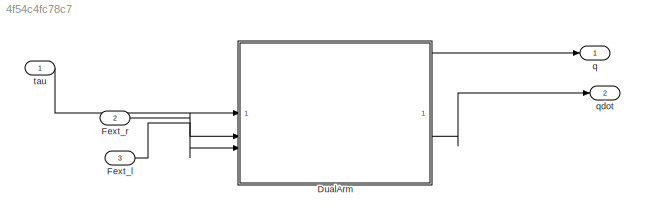
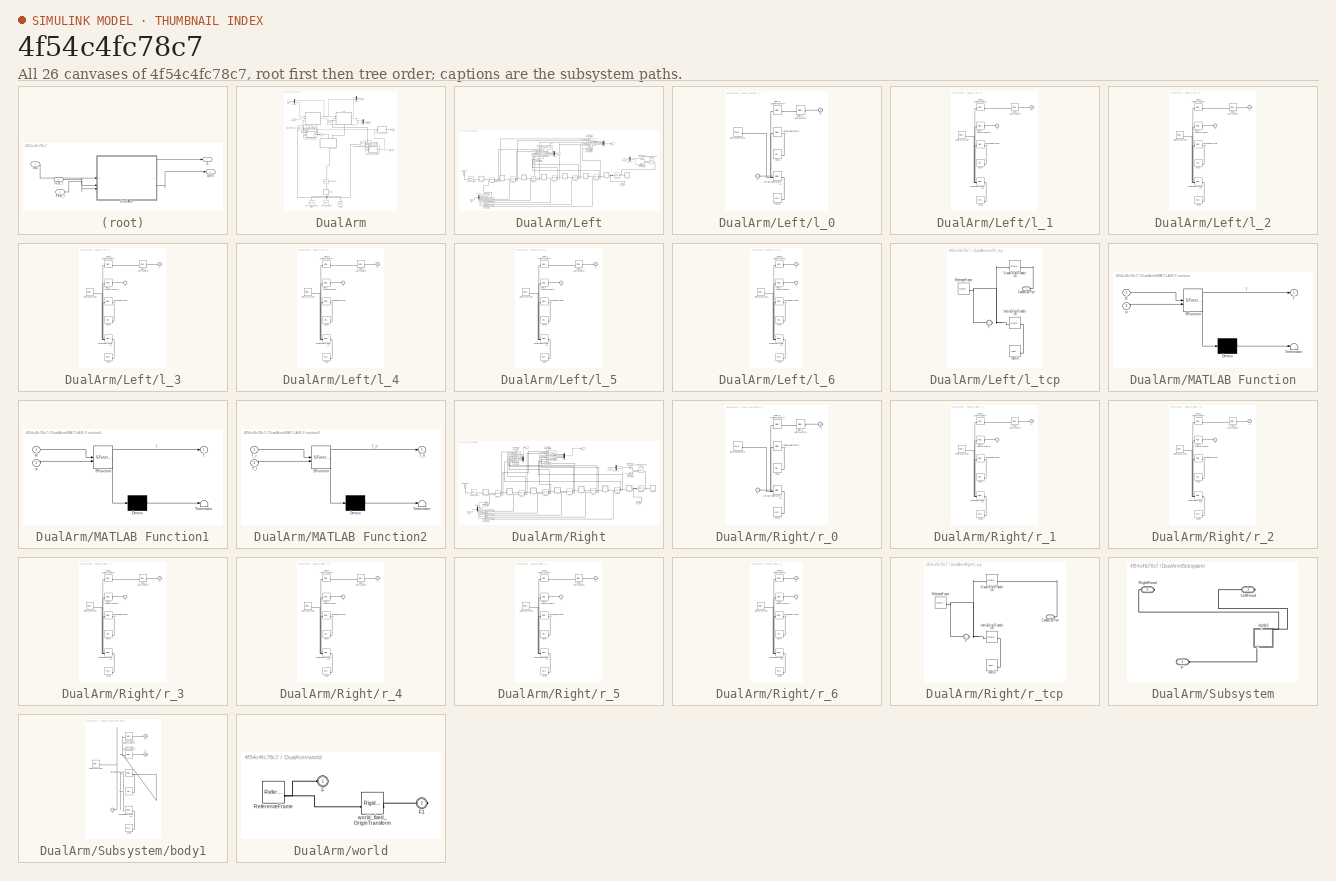
[diagram: thumbnail index - all 26 canvases of the model, root first then tree order]
MODEL slx_4f54c4fc78c7
KIND model
CONFIG AbsTol = auto
CONFIG EnableMultiTasking = off
CONFIG FixedStep = 0.001
CONFIG MaxStep = auto
CONFIG MinStep = auto
CONFIG RelTol = 1e-3
CONFIG SampleTimeConstraint = Unconstrained
CONFIG SolverName = ode8
CONFIG StartTime = 0.0
CONFIG StopTime = Inf
WORKSPACE source: mxarray member
WORKSPACE q_init_l: Simulink.Parameter (value not decoded)
WORKSPACE q_init_l1: Simulink.Parameter (value not decoded)
WORKSPACE q_init_l2: Simulink.Parameter (value not decoded)
WORKSPACE q_init_l3: Simulink.Parameter (value not decoded)
WORKSPACE q_init_l4: Simulink.Parameter (value not decoded)
WORKSPACE q_init_l5: Simulink.Parameter (value not decoded)
WORKSPACE q_init_l6: Simulink.Parameter (value not decoded)
WORKSPACE q_init_r: Simulink.Parameter (value not decoded)
WORKSPACE q_init_r1: Simulink.Parameter (value not decoded)
WORKSPACE q_init_r2: Simulink.Parameter (value not decoded)
WORKSPACE q_init_r3: Simulink.Parameter (value not decoded)
WORKSPACE q_init_r4: Simulink.Parameter (value not decoded)
WORKSPACE q_init_r5: Simulink.Parameter (value not decoded)
WORKSPACE q_init_r6: Simulink.Parameter (value not decoded)
WORKSPACE robot: robotics.RigidBodyTree (value not decoded)
BLOCK [SubSystem] DualArm
BLOCK [Demux] DualArm/Demux
  Outputs = 2
BLOCK [Inport] DualArm/Fext_l
  Port = 3
BLOCK [Inport] DualArm/Fext_r
  Port = 2
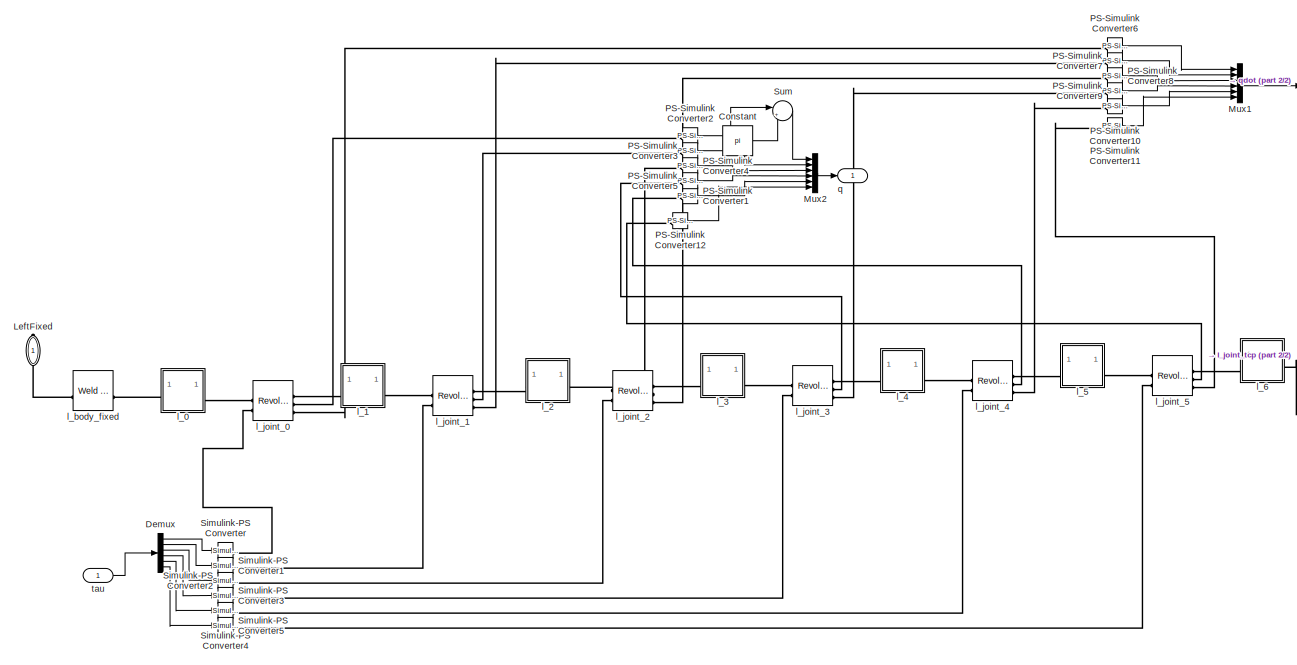
[diagram: DualArm/Left - part 1/2, most of the canvas]
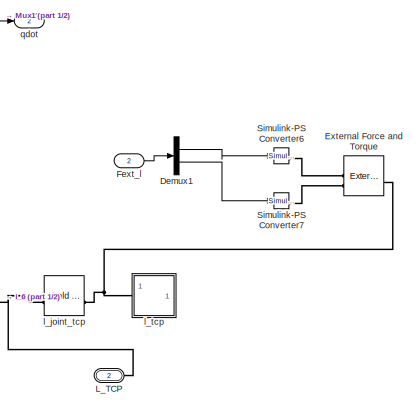
[diagram: DualArm/Left - part 2/2, middle right region]
BLOCK [SubSystem] DualArm/Left
  PortSchema = {"entries":[{"content":{"sides":[{"content":{"connectorIds":["In1","In2","LConn1"]},"type":"ConnectorPlacement.EquallySpacedRectSide","uuid":"a802bf1d-865c-44a2-b0f5-a6da758969a6"},{"content":{"connectorIds":["Out1","Out2"],"side":"RIGHT"},"type":"ConnectorPlacement.EquallySpacedRectSide","uuid":"5f6dd1c3-913e-4ce9-9167-95590779c30f"},{"content":{"side":"TOP"},"type":"ConnectorPlacement.EquallySpa...<+396ch>
BLOCK [Constant] DualArm/Left/Constant
  Value = pi
BLOCK [Demux] DualArm/Left/Demux
  Outputs = 6
BLOCK [Demux] DualArm/Left/Demux1
  Outputs = 2
BLOCK [Reference] DualArm/Left/External Force and Torque  REF=sm_lib/Forces and
Torques/External Force
and Torque
  SourceBlock = sm_lib/Forces and\nTorques/External Force\nand Torque
  SourceType = External Force\nand Torque
BLOCK [Inport] DualArm/Left/Fext_l
  Port = 2
BLOCK [PMIOPort] DualArm/Left/L_TCP
  Port = 2
  Side = Left
BLOCK [PMIOPort] DualArm/Left/LeftFixed
  NameLocation = left
  Side = Right
BLOCK [Mux] DualArm/Left/Mux1
  DisplayOption = bar
  Inputs = 6
BLOCK [Mux] DualArm/Left/Mux2
  DisplayOption = bar
  Inputs = 6
BLOCK [Reference] DualArm/Left/PS-Simulink Converter1  REF=nesl_utility/PS-Simulink
Converter
  SourceBlock = nesl_utility/PS-Simulink\nConverter
  SourceType = PS-Simulink\nConverter
BLOCK [Reference] DualArm/Left/PS-Simulink Converter10  REF=nesl_utility/PS-Simulink
Converter
  SourceBlock = nesl_utility/PS-Simulink\nConverter
  SourceType = PS-Simulink\nConverter
BLOCK [Reference] DualArm/Left/PS-Simulink Converter11  REF=nesl_utility/PS-Simulink
Converter
  SourceBlock = nesl_utility/PS-Simulink\nConverter
  SourceType = PS-Simulink\nConverter
BLOCK [Reference] DualArm/Left/PS-Simulink Converter12  REF=nesl_utility/PS-Simulink
Converter
  SourceBlock = nesl_utility/PS-Simulink\nConverter
  SourceType = PS-Simulink\nConverter
BLOCK [Reference] DualArm/Left/PS-Simulink Converter2  REF=nesl_utility/PS-Simulink
Converter
  SourceBlock = nesl_utility/PS-Simulink\nConverter
  SourceType = PS-Simulink\nConverter
BLOCK [Reference] DualArm/Left/PS-Simulink Converter3  REF=nesl_utility/PS-Simulink
Converter
  SourceBlock = nesl_utility/PS-Simulink\nConverter
  SourceType = PS-Simulink\nConverter
BLOCK [Reference] DualArm/Left/PS-Simulink Converter4  REF=nesl_utility/PS-Simulink
Converter
  SourceBlock = nesl_utility/PS-Simulink\nConverter
  SourceType = PS-Simulink\nConverter
BLOCK [Reference] DualArm/Left/PS-Simulink Converter5  REF=nesl_utility/PS-Simulink
Converter
  SourceBlock = nesl_utility/PS-Simulink\nConverter
  SourceType = PS-Simulink\nConverter
BLOCK [Reference] DualArm/Left/PS-Simulink Converter6  REF=nesl_utility/PS-Simulink
Converter
  SourceBlock = nesl_utility/PS-Simulink\nConverter
  SourceType = PS-Simulink\nConverter
BLOCK [Reference] DualArm/Left/PS-Simulink Converter7  REF=nesl_utility/PS-Simulink
Converter
  SourceBlock = nesl_utility/PS-Simulink\nConverter
  SourceType = PS-Simulink\nConverter
BLOCK [Reference] DualArm/Left/PS-Simulink Converter8  REF=nesl_utility/PS-Simulink
Converter
  SourceBlock = nesl_utility/PS-Simulink\nConverter
  SourceType = PS-Simulink\nConverter
BLOCK [Reference] DualArm/Left/PS-Simulink Converter9  REF=nesl_utility/PS-Simulink
Converter
  SourceBlock = nesl_utility/PS-Simulink\nConverter
  SourceType = PS-Simulink\nConverter
BLOCK [Reference] DualArm/Left/Simulink-PS Converter  REF=nesl_utility/Simulink-PS
Converter
  SourceBlock = nesl_utility/Simulink-PS\nConverter
  SourceType = Simulink-PS\nConverter
BLOCK [Reference] DualArm/Left/Simulink-PS Converter1  REF=nesl_utility/Simulink-PS
Converter
  SourceBlock = nesl_utility/Simulink-PS\nConverter
  SourceType = Simulink-PS\nConverter
BLOCK [Reference] DualArm/Left/Simulink-PS Converter2  REF=nesl_utility/Simulink-PS
Converter
  SourceBlock = nesl_utility/Simulink-PS\nConverter
  SourceType = Simulink-PS\nConverter
BLOCK [Reference] DualArm/Left/Simulink-PS Converter3  REF=nesl_utility/Simulink-PS
Converter
  SourceBlock = nesl_utility/Simulink-PS\nConverter
  SourceType = Simulink-PS\nConverter
BLOCK [Reference] DualArm/Left/Simulink-PS Converter4  REF=nesl_utility/Simulink-PS
Converter
  SourceBlock = nesl_utility/Simulink-PS\nConverter
  SourceType = Simulink-PS\nConverter
BLOCK [Reference] DualArm/Left/Simulink-PS Converter5  REF=nesl_utility/Simulink-PS
Converter
  SourceBlock = nesl_utility/Simulink-PS\nConverter
  SourceType = Simulink-PS\nConverter
BLOCK [Reference] DualArm/Left/Simulink-PS Converter6  REF=nesl_utility/Simulink-PS
Converter
  SourceBlock = nesl_utility/Simulink-PS\nConverter
  SourceType = Simulink-PS\nConverter
BLOCK [Reference] DualArm/Left/Simulink-PS Converter7  REF=nesl_utility/Simulink-PS
Converter
  SourceBlock = nesl_utility/Simulink-PS\nConverter
  SourceType = Simulink-PS\nConverter
BLOCK [Sum] DualArm/Left/Sum
  Inputs = |+-
BLOCK [SubSystem] DualArm/Left/l_0
BLOCK [PMIOPort] DualArm/Left/l_0/F
  Side = Left
BLOCK [PMIOPort] DualArm/Left/l_0/F1
  Port = 2
  Side = Right
BLOCK [Reference] DualArm/Left/l_0/Inertia  REF=sm_lib/Body Elements/Inertia
  SourceBlock = sm_lib/Body Elements/Inertia
  SourceType = Inertia
BLOCK [Reference] DualArm/Left/l_0/InertiaOriginTransform  REF=sm_lib/Frames and
Transforms/Rigid
Transform
  SourceBlock = sm_lib/Frames and\nTransforms/Rigid\nTransform
  SourceType = Rigid\nTransform
BLOCK [Reference] DualArm/Left/l_0/ReferenceFrame  REF=sm_lib/Frames and
Transforms/Reference
Frame
  SourceBlock = sm_lib/Frames and\nTransforms/Reference\nFrame
  SourceType = Reference\nFrame
BLOCK [Reference] DualArm/Left/l_0/Visual  REF=sm_lib/Body Elements/File Solid
  SourceBlock = sm_lib/Body Elements/File Solid
  SourceType = File Solid
BLOCK [Reference] DualArm/Left/l_0/VisualOriginTransform  REF=sm_lib/Frames and
Transforms/Rigid
Transform
  SourceBlock = sm_lib/Frames and\nTransforms/Rigid\nTransform
  SourceType = Rigid\nTransform
BLOCK [Reference] DualArm/Left/l_0/l_joint_0_AxisTransform  REF=sm_lib/Frames and
Transforms/Rigid
Transform
  SourceBlock = sm_lib/Frames and\nTransforms/Rigid\nTransform
  SourceType = Rigid\nTransform
BLOCK [Reference] DualArm/Left/l_0/l_joint_0_OriginTransform  REF=sm_lib/Frames and
Transforms/Rigid
Transform
  SourceBlock = sm_lib/Frames and\nTransforms/Rigid\nTransform
  SourceType = Rigid\nTransform
BLOCK [SubSystem] DualArm/Left/l_1
BLOCK [PMIOPort] DualArm/Left/l_1/F
  Side = Left
BLOCK [PMIOPort] DualArm/Left/l_1/F1
  Port = 2
  Side = Right
BLOCK [Reference] DualArm/Left/l_1/Inertia  REF=sm_lib/Body Elements/Inertia
  SourceBlock = sm_lib/Body Elements/Inertia
  SourceType = Inertia
BLOCK [Reference] DualArm/Left/l_1/InertiaOriginTransform  REF=sm_lib/Frames and
Transforms/Rigid
Transform
  SourceBlock = sm_lib/Frames and\nTransforms/Rigid\nTransform
  SourceType = Rigid\nTransform
BLOCK [Reference] DualArm/Left/l_1/ReferenceFrame  REF=sm_lib/Frames and
Transforms/Reference
Frame
  SourceBlock = sm_lib/Frames and\nTransforms/Reference\nFrame
  SourceType = Reference\nFrame
BLOCK [Reference] DualArm/Left/l_1/Visual  REF=sm_lib/Body Elements/File Solid
  SourceBlock = sm_lib/Body Elements/File Solid
  SourceType = File Solid
BLOCK [Reference] DualArm/Left/l_1/VisualOriginTransform  REF=sm_lib/Frames and
Transforms/Rigid
Transform
  SourceBlock = sm_lib/Frames and\nTransforms/Rigid\nTransform
  SourceType = Rigid\nTransform
BLOCK [Reference] DualArm/Left/l_1/l_joint_0_AxisInvTransform  REF=sm_lib/Frames and
Transforms/Rigid
Transform
  SourceBlock = sm_lib/Frames and\nTransforms/Rigid\nTransform
  SourceType = Rigid\nTransform
BLOCK [Reference] DualArm/Left/l_1/l_joint_1_AxisTransform  REF=sm_lib/Frames and
Transforms/Rigid
Transform
  SourceBlock = sm_lib/Frames and\nTransforms/Rigid\nTransform
  SourceType = Rigid\nTransform
BLOCK [Reference] DualArm/Left/l_1/l_joint_1_OriginTransform  REF=sm_lib/Frames and
Transforms/Rigid
Transform
  SourceBlock = sm_lib/Frames and\nTransforms/Rigid\nTransform
  SourceType = Rigid\nTransform
BLOCK [SubSystem] DualArm/Left/l_2
BLOCK [PMIOPort] DualArm/Left/l_2/F
  Side = Left
BLOCK [PMIOPort] DualArm/Left/l_2/F1
  Port = 2
  Side = Right
BLOCK [Reference] DualArm/Left/l_2/Inertia  REF=sm_lib/Body Elements/Inertia
  SourceBlock = sm_lib/Body Elements/Inertia
  SourceType = Inertia
BLOCK [Reference] DualArm/Left/l_2/InertiaOriginTransform  REF=sm_lib/Frames and
Transforms/Rigid
Transform
  SourceBlock = sm_lib/Frames and\nTransforms/Rigid\nTransform
  SourceType = Rigid\nTransform
BLOCK [Reference] DualArm/Left/l_2/ReferenceFrame  REF=sm_lib/Frames and
Transforms/Reference
Frame
  SourceBlock = sm_lib/Frames and\nTransforms/Reference\nFrame
  SourceType = Reference\nFrame
BLOCK [Reference] DualArm/Left/l_2/Visual  REF=sm_lib/Body Elements/File Solid
  SourceBlock = sm_lib/Body Elements/File Solid
  SourceType = File Solid
BLOCK [Reference] DualArm/Left/l_2/VisualOriginTransform  REF=sm_lib/Frames and
Transforms/Rigid
Transform
  SourceBlock = sm_lib/Frames and\nTransforms/Rigid\nTransform
  SourceType = Rigid\nTransform
BLOCK [Reference] DualArm/Left/l_2/l_joint_1_AxisInvTransform  REF=sm_lib/Frames and
Transforms/Rigid
Transform
  SourceBlock = sm_lib/Frames and\nTransforms/Rigid\nTransform
  SourceType = Rigid\nTransform
BLOCK [Reference] DualArm/Left/l_2/l_joint_2_AxisTransform  REF=sm_lib/Frames and
Transforms/Rigid
Transform
  SourceBlock = sm_lib/Frames and\nTransforms/Rigid\nTransform
  SourceType = Rigid\nTransform
BLOCK [Reference] DualArm/Left/l_2/l_joint_2_OriginTransform  REF=sm_lib/Frames and
Transforms/Rigid
Transform
  SourceBlock = sm_lib/Frames and\nTransforms/Rigid\nTransform
  SourceType = Rigid\nTransform
BLOCK [SubSystem] DualArm/Left/l_3
BLOCK [PMIOPort] DualArm/Left/l_3/F
  Side = Left
BLOCK [PMIOPort] DualArm/Left/l_3/F1
  Port = 2
  Side = Right
BLOCK [Reference] DualArm/Left/l_3/Inertia  REF=sm_lib/Body Elements/Inertia
  SourceBlock = sm_lib/Body Elements/Inertia
  SourceType = Inertia
BLOCK [Reference] DualArm/Left/l_3/InertiaOriginTransform  REF=sm_lib/Frames and
Transforms/Rigid
Transform
  SourceBlock = sm_lib/Frames and\nTransforms/Rigid\nTransform
  SourceType = Rigid\nTransform
BLOCK [Reference] DualArm/Left/l_3/ReferenceFrame  REF=sm_lib/Frames and
Transforms/Reference
Frame
  SourceBlock = sm_lib/Frames and\nTransforms/Reference\nFrame
  SourceType = Reference\nFrame
BLOCK [Reference] DualArm/Left/l_3/Visual  REF=sm_lib/Body Elements/File Solid
  SourceBlock = sm_lib/Body Elements/File Solid
  SourceType = File Solid
BLOCK [Reference] DualArm/Left/l_3/VisualOriginTransform  REF=sm_lib/Frames and
Transforms/Rigid
Transform
  SourceBlock = sm_lib/Frames and\nTransforms/Rigid\nTransform
  SourceType = Rigid\nTransform
BLOCK [Reference] DualArm/Left/l_3/l_joint_2_AxisInvTransform  REF=sm_lib/Frames and
Transforms/Rigid
Transform
  SourceBlock = sm_lib/Frames and\nTransforms/Rigid\nTransform
  SourceType = Rigid\nTransform
BLOCK [Reference] DualArm/Left/l_3/l_joint_3_AxisTransform  REF=sm_lib/Frames and
Transforms/Rigid
Transform
  SourceBlock = sm_lib/Frames and\nTransforms/Rigid\nTransform
  SourceType = Rigid\nTransform
BLOCK [Reference] DualArm/Left/l_3/l_joint_3_OriginTransform  REF=sm_lib/Frames and
Transforms/Rigid
Transform
  SourceBlock = sm_lib/Frames and\nTransforms/Rigid\nTransform
  SourceType = Rigid\nTransform
BLOCK [SubSystem] DualArm/Left/l_4
BLOCK [PMIOPort] DualArm/Left/l_4/F
  Side = Left
BLOCK [PMIOPort] DualArm/Left/l_4/F1
  Port = 2
  Side = Right
BLOCK [Reference] DualArm/Left/l_4/Inertia  REF=sm_lib/Body Elements/Inertia
  SourceBlock = sm_lib/Body Elements/Inertia
  SourceType = Inertia
BLOCK [Reference] DualArm/Left/l_4/InertiaOriginTransform  REF=sm_lib/Frames and
Transforms/Rigid
Transform
  SourceBlock = sm_lib/Frames and\nTransforms/Rigid\nTransform
  SourceType = Rigid\nTransform
BLOCK [Reference] DualArm/Left/l_4/ReferenceFrame  REF=sm_lib/Frames and
Transforms/Reference
Frame
  SourceBlock = sm_lib/Frames and\nTransforms/Reference\nFrame
  SourceType = Reference\nFrame
BLOCK [Reference] DualArm/Left/l_4/Visual  REF=sm_lib/Body Elements/File Solid
  SourceBlock = sm_lib/Body Elements/File Solid
  SourceType = File Solid
BLOCK [Reference] DualArm/Left/l_4/VisualOriginTransform  REF=sm_lib/Frames and
Transforms/Rigid
Transform
  SourceBlock = sm_lib/Frames and\nTransforms/Rigid\nTransform
  SourceType = Rigid\nTransform
BLOCK [Reference] DualArm/Left/l_4/l_joint_3_AxisInvTransform  REF=sm_lib/Frames and
Transforms/Rigid
Transform
  SourceBlock = sm_lib/Frames and\nTransforms/Rigid\nTransform
  SourceType = Rigid\nTransform
BLOCK [Reference] DualArm/Left/l_4/l_joint_4_AxisTransform  REF=sm_lib/Frames and
Transforms/Rigid
Transform
  SourceBlock = sm_lib/Frames and\nTransforms/Rigid\nTransform
  SourceType = Rigid\nTransform
BLOCK [Reference] DualArm/Left/l_4/l_joint_4_OriginTransform  REF=sm_lib/Frames and
Transforms/Rigid
Transform
  SourceBlock = sm_lib/Frames and\nTransforms/Rigid\nTransform
  SourceType = Rigid\nTransform
BLOCK [SubSystem] DualArm/Left/l_5
BLOCK [PMIOPort] DualArm/Left/l_5/F
  Side = Left
BLOCK [PMIOPort] DualArm/Left/l_5/F1
  Port = 2
  Side = Right
BLOCK [Reference] DualArm/Left/l_5/Inertia  REF=sm_lib/Body Elements/Inertia
  SourceBlock = sm_lib/Body Elements/Inertia
  SourceType = Inertia
BLOCK [Reference] DualArm/Left/l_5/InertiaOriginTransform  REF=sm_lib/Frames and
Transforms/Rigid
Transform
  SourceBlock = sm_lib/Frames and\nTransforms/Rigid\nTransform
  SourceType = Rigid\nTransform
BLOCK [Reference] DualArm/Left/l_5/ReferenceFrame  REF=sm_lib/Frames and
Transforms/Reference
Frame
  SourceBlock = sm_lib/Frames and\nTransforms/Reference\nFrame
  SourceType = Reference\nFrame
BLOCK [Reference] DualArm/Left/l_5/Visual  REF=sm_lib/Body Elements/File Solid
  SourceBlock = sm_lib/Body Elements/File Solid
  SourceType = File Solid
BLOCK [Reference] DualArm/Left/l_5/VisualOriginTransform  REF=sm_lib/Frames and
Transforms/Rigid
Transform
  SourceBlock = sm_lib/Frames and\nTransforms/Rigid\nTransform
  SourceType = Rigid\nTransform
BLOCK [Reference] DualArm/Left/l_5/l_joint_4_AxisInvTransform  REF=sm_lib/Frames and
Transforms/Rigid
Transform
  SourceBlock = sm_lib/Frames and\nTransforms/Rigid\nTransform
  SourceType = Rigid\nTransform
BLOCK [Reference] DualArm/Left/l_5/l_joint_5_AxisTransform  REF=sm_lib/Frames and
Transforms/Rigid
Transform
  SourceBlock = sm_lib/Frames and\nTransforms/Rigid\nTransform
  SourceType = Rigid\nTransform
BLOCK [Reference] DualArm/Left/l_5/l_joint_5_OriginTransform  REF=sm_lib/Frames and
Transforms/Rigid
Transform
  SourceBlock = sm_lib/Frames and\nTransforms/Rigid\nTransform
  SourceType = Rigid\nTransform
BLOCK [SubSystem] DualArm/Left/l_6
BLOCK [PMIOPort] DualArm/Left/l_6/F
  Side = Left
BLOCK [PMIOPort] DualArm/Left/l_6/F1
  Port = 2
  Side = Right
BLOCK [Reference] DualArm/Left/l_6/Inertia  REF=sm_lib/Body Elements/Inertia
  SourceBlock = sm_lib/Body Elements/Inertia
  SourceType = Inertia
BLOCK [Reference] DualArm/Left/l_6/InertiaOriginTransform  REF=sm_lib/Frames and
Transforms/Rigid
Transform
  SourceBlock = sm_lib/Frames and\nTransforms/Rigid\nTransform
  SourceType = Rigid\nTransform
BLOCK [Reference] DualArm/Left/l_6/ReferenceFrame  REF=sm_lib/Frames and
Transforms/Reference
Frame
  SourceBlock = sm_lib/Frames and\nTransforms/Reference\nFrame
  SourceType = Reference\nFrame
BLOCK [Reference] DualArm/Left/l_6/Visual  REF=sm_lib/Body Elements/File Solid
  SourceBlock = sm_lib/Body Elements/File Solid
  SourceType = File Solid
BLOCK [Reference] DualArm/Left/l_6/VisualOriginTransform  REF=sm_lib/Frames and
Transforms/Rigid
Transform
  SourceBlock = sm_lib/Frames and\nTransforms/Rigid\nTransform
  SourceType = Rigid\nTransform
BLOCK [Reference] DualArm/Left/l_6/l_joint_5_AxisInvTransform  REF=sm_lib/Frames and
Transforms/Rigid
Transform
  SourceBlock = sm_lib/Frames and\nTransforms/Rigid\nTransform
  SourceType = Rigid\nTransform
BLOCK [Reference] DualArm/Left/l_6/l_joint_tcp_OriginTransform  REF=sm_lib/Frames and
Transforms/Rigid
Transform
  SourceBlock = sm_lib/Frames and\nTransforms/Rigid\nTransform
  SourceType = Rigid\nTransform
BLOCK [Reference] DualArm/Left/l_body_fixed  REF=sm_lib/Joints/Weld Joint
  SourceBlock = sm_lib/Joints/Weld Joint
  SourceType = Weld Joint
BLOCK [Reference] DualArm/Left/l_joint_0  REF=sm_lib/Joints/Revolute Joint
  SourceBlock = sm_lib/Joints/Revolute Joint
  SourceType = Revolute Joint
BLOCK [Reference] DualArm/Left/l_joint_1  REF=sm_lib/Joints/Revolute Joint
  SourceBlock = sm_lib/Joints/Revolute Joint
  SourceType = Revolute Joint
BLOCK [Reference] DualArm/Left/l_joint_2  REF=sm_lib/Joints/Revolute Joint
  SourceBlock = sm_lib/Joints/Revolute Joint
  SourceType = Revolute Joint
BLOCK [Reference] DualArm/Left/l_joint_3  REF=sm_lib/Joints/Revolute Joint
  SourceBlock = sm_lib/Joints/Revolute Joint
  SourceType = Revolute Joint
BLOCK [Reference] DualArm/Left/l_joint_4  REF=sm_lib/Joints/Revolute Joint
  SourceBlock = sm_lib/Joints/Revolute Joint
  SourceType = Revolute Joint
BLOCK [Reference] DualArm/Left/l_joint_5  REF=sm_lib/Joints/Revolute Joint
  SourceBlock = sm_lib/Joints/Revolute Joint
  SourceType = Revolute Joint
BLOCK [Reference] DualArm/Left/l_joint_tcp  REF=sm_lib/Joints/Weld Joint
  SourceBlock = sm_lib/Joints/Weld Joint
  SourceType = Weld Joint
BLOCK [SubSystem] DualArm/Left/l_tcp
BLOCK [PMIOPort] DualArm/Left/l_tcp/Connection Port
  Port = 2
  Side = Left
BLOCK [PMIOPort] DualArm/Left/l_tcp/F
  Side = Left
BLOCK [Reference] DualArm/Left/l_tcp/Inertia  REF=sm_lib/Body Elements/Inertia
  SourceBlock = sm_lib/Body Elements/Inertia
  SourceType = Inertia
BLOCK [Reference] DualArm/Left/l_tcp/InertiaOriginTransform  REF=sm_lib/Frames and
Transforms/Rigid
Transform
  SourceBlock = sm_lib/Frames and\nTransforms/Rigid\nTransform
  SourceType = Rigid\nTransform
BLOCK [Reference] DualArm/Left/l_tcp/ReferenceFrame  REF=sm_lib/Frames and
Transforms/Reference
Frame
  SourceBlock = sm_lib/Frames and\nTransforms/Reference\nFrame
  SourceType = Reference\nFrame
BLOCK [Reference] DualArm/Left/l_tcp/VisualOriginTransform  REF=sm_lib/Frames and
Transforms/Rigid
Transform
  SourceBlock = sm_lib/Frames and\nTransforms/Rigid\nTransform
  SourceType = Rigid\nTransform
BLOCK [Outport] DualArm/Left/q
BLOCK [Outport] DualArm/Left/qdot
  Port = 2
BLOCK [Inport] DualArm/Left/tau
BLOCK [SubSystem] DualArm/MATLAB Function
  ErrorFcn = Stateflow.Translate.translate
  PermitHierarchicalResolution = ExplicitOnly
  SFBlockType = MATLAB Function
  TreatAsAtomicUnit = on
BLOCK [Demux] DualArm/MATLAB Function/ Demux 
  Outputs = 1
BLOCK [S-Function] DualArm/MATLAB Function/ SFunction 
  EnableBusSupport = on
  FunctionName = sf_sfun
  PortCounts = [2 2]
  SFcnIsStateOwnerBlock = off
  SFunctionDeploymentMode = off
  Tag = Stateflow S-Function 4
BLOCK [Terminator] DualArm/MATLAB Function/ Terminator 
BLOCK [Inport] DualArm/MATLAB Function/R
BLOCK [Outport] DualArm/MATLAB Function/T
BLOCK [Inport] DualArm/MATLAB Function/p
  Port = 2
BLOCK [SubSystem] DualArm/MATLAB Function1
  ErrorFcn = Stateflow.Translate.translate
  PermitHierarchicalResolution = ExplicitOnly
  SFBlockType = MATLAB Function
  TreatAsAtomicUnit = on
BLOCK [Demux] DualArm/MATLAB Function1/ Demux 
  Outputs = 1
BLOCK [S-Function] DualArm/MATLAB Function1/ SFunction 
  EnableBusSupport = on
  FunctionName = sf_sfun
  PortCounts = [2 2]
  SFcnIsStateOwnerBlock = off
  SFunctionDeploymentMode = off
  Tag = Stateflow S-Function 5
BLOCK [Terminator] DualArm/MATLAB Function1/ Terminator 
BLOCK [Inport] DualArm/MATLAB Function1/R
BLOCK [Outport] DualArm/MATLAB Function1/T
BLOCK [Inport] DualArm/MATLAB Function1/p
  Port = 2
BLOCK [SubSystem] DualArm/MATLAB Function2
  ErrorFcn = Stateflow.Translate.translate
  PermitHierarchicalResolution = ExplicitOnly
  SFBlockType = MATLAB Function
  TreatAsAtomicUnit = on
BLOCK [Demux] DualArm/MATLAB Function2/ Demux 
  Outputs = 1
BLOCK [S-Function] DualArm/MATLAB Function2/ SFunction 
  EnableBusSupport = on
  FunctionName = sf_sfun
  PortCounts = [2 2]
  SFcnIsStateOwnerBlock = off
  SFunctionDeploymentMode = off
  Tag = Stateflow S-Function 6
BLOCK [Terminator] DualArm/MATLAB Function2/ Terminator 
BLOCK [Inport] DualArm/MATLAB Function2/T_l
  Port = 2
BLOCK [Inport] DualArm/MATLAB Function2/T_r
BLOCK [Outport] DualArm/MATLAB Function2/T_rl
BLOCK [Reference] DualArm/MechanismConfiguration  REF=sm_lib/Utilities/Mechanism
Configuration
  NameLocation = right
  SourceBlock = sm_lib/Utilities/Mechanism\nConfiguration
  SourceType = Mechanism\nConfiguration
BLOCK [Mux] DualArm/Mux
  DisplayOption = bar
  Inputs = 2
BLOCK [Mux] DualArm/Mux1
  DisplayOption = bar
  Inputs = 2
BLOCK [Reference] DualArm/PS-Simulink Converter  REF=nesl_utility/PS-Simulink
Converter
  SourceBlock = nesl_utility/PS-Simulink\nConverter
  SourceType = PS-Simulink\nConverter
BLOCK [Reference] DualArm/PS-Simulink Converter1  REF=nesl_utility/PS-Simulink
Converter
  SourceBlock = nesl_utility/PS-Simulink\nConverter
  SourceType = PS-Simulink\nConverter
BLOCK [Reference] DualArm/PS-Simulink Converter2  REF=nesl_utility/PS-Simulink
Converter
  SourceBlock = nesl_utility/PS-Simulink\nConverter
  SourceType = PS-Simulink\nConverter
BLOCK [Reference] DualArm/PS-Simulink Converter3  REF=nesl_utility/PS-Simulink
Converter
  SourceBlock = nesl_utility/PS-Simulink\nConverter
  SourceType = PS-Simulink\nConverter
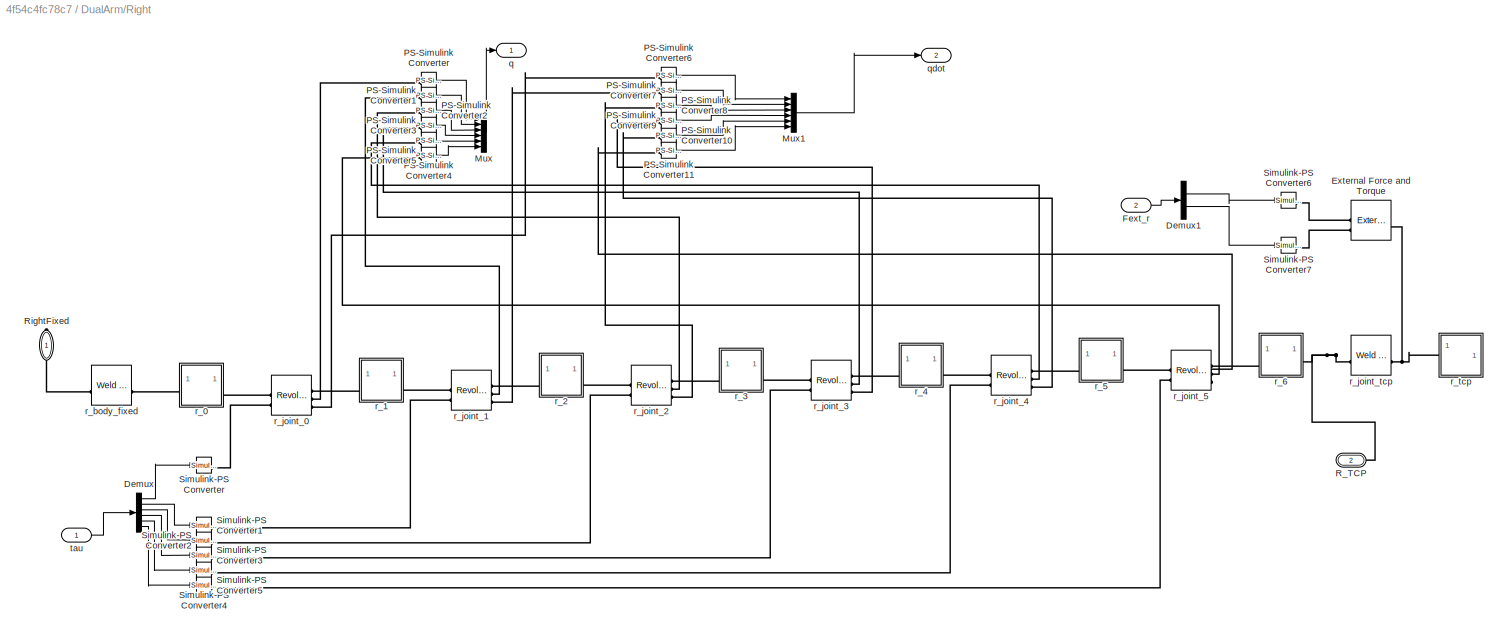
BLOCK [SubSystem] DualArm/Right
  PortSchema = {"entries":[{"content":{"sides":[{"content":{"connectorIds":["In1","In2","LConn1"]},"type":"ConnectorPlacement.EquallySpacedRectSide","uuid":"fdf178f2-e7c3-4173-86ca-7321804fb5d5"},{"content":{"connectorIds":["Out1","Out2"],"side":"RIGHT"},"type":"ConnectorPlacement.EquallySpacedRectSide","uuid":"59022458-aa9c-4c83-9b4f-7726f2382bb8"},{"content":{"side":"TOP"},"type":"ConnectorPlacement.EquallySpa...<+396ch>
BLOCK [Demux] DualArm/Right/Demux
  Outputs = 6
BLOCK [Demux] DualArm/Right/Demux1
  Outputs = 2
BLOCK [Reference] DualArm/Right/External Force and Torque  REF=sm_lib/Forces and
Torques/External Force
and Torque
  SourceBlock = sm_lib/Forces and\nTorques/External Force\nand Torque
  SourceType = External Force\nand Torque
BLOCK [Inport] DualArm/Right/Fext_r
  Port = 2
BLOCK [Mux] DualArm/Right/Mux
  DisplayOption = bar
  Inputs = 6
BLOCK [Mux] DualArm/Right/Mux1
  DisplayOption = bar
  Inputs = 6
BLOCK [Reference] DualArm/Right/PS-Simulink Converter  REF=nesl_utility/PS-Simulink
Converter
  SourceBlock = nesl_utility/PS-Simulink\nConverter
  SourceType = PS-Simulink\nConverter
BLOCK [Reference] DualArm/Right/PS-Simulink Converter1  REF=nesl_utility/PS-Simulink
Converter
  SourceBlock = nesl_utility/PS-Simulink\nConverter
  SourceType = PS-Simulink\nConverter
BLOCK [Reference] DualArm/Right/PS-Simulink Converter10  REF=nesl_utility/PS-Simulink
Converter
  SourceBlock = nesl_utility/PS-Simulink\nConverter
  SourceType = PS-Simulink\nConverter
BLOCK [Reference] DualArm/Right/PS-Simulink Converter11  REF=nesl_utility/PS-Simulink
Converter
  SourceBlock = nesl_utility/PS-Simulink\nConverter
  SourceType = PS-Simulink\nConverter
BLOCK [Reference] DualArm/Right/PS-Simulink Converter2  REF=nesl_utility/PS-Simulink
Converter
  SourceBlock = nesl_utility/PS-Simulink\nConverter
  SourceType = PS-Simulink\nConverter
BLOCK [Reference] DualArm/Right/PS-Simulink Converter3  REF=nesl_utility/PS-Simulink
Converter
  SourceBlock = nesl_utility/PS-Simulink\nConverter
  SourceType = PS-Simulink\nConverter
BLOCK [Reference] DualArm/Right/PS-Simulink Converter4  REF=nesl_utility/PS-Simulink
Converter
  SourceBlock = nesl_utility/PS-Simulink\nConverter
  SourceType = PS-Simulink\nConverter
BLOCK [Reference] DualArm/Right/PS-Simulink Converter5  REF=nesl_utility/PS-Simulink
Converter
  SourceBlock = nesl_utility/PS-Simulink\nConverter
  SourceType = PS-Simulink\nConverter
BLOCK [Reference] DualArm/Right/PS-Simulink Converter6  REF=nesl_utility/PS-Simulink
Converter
  SourceBlock = nesl_utility/PS-Simulink\nConverter
  SourceType = PS-Simulink\nConverter
BLOCK [Reference] DualArm/Right/PS-Simulink Converter7  REF=nesl_utility/PS-Simulink
Converter
  SourceBlock = nesl_utility/PS-Simulink\nConverter
  SourceType = PS-Simulink\nConverter
BLOCK [Reference] DualArm/Right/PS-Simulink Converter8  REF=nesl_utility/PS-Simulink
Converter
  SourceBlock = nesl_utility/PS-Simulink\nConverter
  SourceType = PS-Simulink\nConverter
BLOCK [Reference] DualArm/Right/PS-Simulink Converter9  REF=nesl_utility/PS-Simulink
Converter
  SourceBlock = nesl_utility/PS-Simulink\nConverter
  SourceType = PS-Simulink\nConverter
BLOCK [PMIOPort] DualArm/Right/R_TCP
  Port = 2
  Side = Left
BLOCK [PMIOPort] DualArm/Right/RightFixed
  NameLocation = left
  Side = Right
BLOCK [Reference] DualArm/Right/Simulink-PS Converter  REF=nesl_utility/Simulink-PS
Converter
  SourceBlock = nesl_utility/Simulink-PS\nConverter
  SourceType = Simulink-PS\nConverter
BLOCK [Reference] DualArm/Right/Simulink-PS Converter1  REF=nesl_utility/Simulink-PS
Converter
  SourceBlock = nesl_utility/Simulink-PS\nConverter
  SourceType = Simulink-PS\nConverter
BLOCK [Reference] DualArm/Right/Simulink-PS Converter2  REF=nesl_utility/Simulink-PS
Converter
  SourceBlock = nesl_utility/Simulink-PS\nConverter
  SourceType = Simulink-PS\nConverter
BLOCK [Reference] DualArm/Right/Simulink-PS Converter3  REF=nesl_utility/Simulink-PS
Converter
  SourceBlock = nesl_utility/Simulink-PS\nConverter
  SourceType = Simulink-PS\nConverter
BLOCK [Reference] DualArm/Right/Simulink-PS Converter4  REF=nesl_utility/Simulink-PS
Converter
  SourceBlock = nesl_utility/Simulink-PS\nConverter
  SourceType = Simulink-PS\nConverter
BLOCK [Reference] DualArm/Right/Simulink-PS Converter5  REF=nesl_utility/Simulink-PS
Converter
  SourceBlock = nesl_utility/Simulink-PS\nConverter
  SourceType = Simulink-PS\nConverter
BLOCK [Reference] DualArm/Right/Simulink-PS Converter6  REF=nesl_utility/Simulink-PS
Converter
  SourceBlock = nesl_utility/Simulink-PS\nConverter
  SourceType = Simulink-PS\nConverter
BLOCK [Reference] DualArm/Right/Simulink-PS Converter7  REF=nesl_utility/Simulink-PS
Converter
  SourceBlock = nesl_utility/Simulink-PS\nConverter
  SourceType = Simulink-PS\nConverter
BLOCK [Outport] DualArm/Right/q
BLOCK [Outport] DualArm/Right/qdot
  Port = 2
BLOCK [SubSystem] DualArm/Right/r_0
BLOCK [PMIOPort] DualArm/Right/r_0/F
  Side = Left
BLOCK [PMIOPort] DualArm/Right/r_0/F1
  Port = 2
  Side = Right
BLOCK [Reference] DualArm/Right/r_0/Inertia  REF=sm_lib/Body Elements/Inertia
  SourceBlock = sm_lib/Body Elements/Inertia
  SourceType = Inertia
BLOCK [Reference] DualArm/Right/r_0/InertiaOriginTransform  REF=sm_lib/Frames and
Transforms/Rigid
Transform
  SourceBlock = sm_lib/Frames and\nTransforms/Rigid\nTransform
  SourceType = Rigid\nTransform
BLOCK [Reference] DualArm/Right/r_0/ReferenceFrame  REF=sm_lib/Frames and
Transforms/Reference
Frame
  SourceBlock = sm_lib/Frames and\nTransforms/Reference\nFrame
  SourceType = Reference\nFrame
BLOCK [Reference] DualArm/Right/r_0/Visual  REF=sm_lib/Body Elements/File Solid
  SourceBlock = sm_lib/Body Elements/File Solid
  SourceType = File Solid
BLOCK [Reference] DualArm/Right/r_0/VisualOriginTransform  REF=sm_lib/Frames and
Transforms/Rigid
Transform
  SourceBlock = sm_lib/Frames and\nTransforms/Rigid\nTransform
  SourceType = Rigid\nTransform
BLOCK [Reference] DualArm/Right/r_0/r_joint_0_AxisTransform  REF=sm_lib/Frames and
Transforms/Rigid
Transform
  SourceBlock = sm_lib/Frames and\nTransforms/Rigid\nTransform
  SourceType = Rigid\nTransform
BLOCK [Reference] DualArm/Right/r_0/r_joint_0_OriginTransform  REF=sm_lib/Frames and
Transforms/Rigid
Transform
  SourceBlock = sm_lib/Frames and\nTransforms/Rigid\nTransform
  SourceType = Rigid\nTransform
BLOCK [SubSystem] DualArm/Right/r_1
BLOCK [PMIOPort] DualArm/Right/r_1/F
  Side = Left
BLOCK [PMIOPort] DualArm/Right/r_1/F1
  Port = 2
  Side = Right
BLOCK [Reference] DualArm/Right/r_1/Inertia  REF=sm_lib/Body Elements/Inertia
  SourceBlock = sm_lib/Body Elements/Inertia
  SourceType = Inertia
BLOCK [Reference] DualArm/Right/r_1/InertiaOriginTransform  REF=sm_lib/Frames and
Transforms/Rigid
Transform
  SourceBlock = sm_lib/Frames and\nTransforms/Rigid\nTransform
  SourceType = Rigid\nTransform
BLOCK [Reference] DualArm/Right/r_1/ReferenceFrame  REF=sm_lib/Frames and
Transforms/Reference
Frame
  SourceBlock = sm_lib/Frames and\nTransforms/Reference\nFrame
  SourceType = Reference\nFrame
BLOCK [Reference] DualArm/Right/r_1/Visual  REF=sm_lib/Body Elements/File Solid
  SourceBlock = sm_lib/Body Elements/File Solid
  SourceType = File Solid
BLOCK [Reference] DualArm/Right/r_1/VisualOriginTransform  REF=sm_lib/Frames and
Transforms/Rigid
Transform
  SourceBlock = sm_lib/Frames and\nTransforms/Rigid\nTransform
  SourceType = Rigid\nTransform
BLOCK [Reference] DualArm/Right/r_1/r_joint_0_AxisInvTransform  REF=sm_lib/Frames and
Transforms/Rigid
Transform
  SourceBlock = sm_lib/Frames and\nTransforms/Rigid\nTransform
  SourceType = Rigid\nTransform
BLOCK [Reference] DualArm/Right/r_1/r_joint_1_AxisTransform  REF=sm_lib/Frames and
Transforms/Rigid
Transform
  SourceBlock = sm_lib/Frames and\nTransforms/Rigid\nTransform
  SourceType = Rigid\nTransform
BLOCK [Reference] DualArm/Right/r_1/r_joint_1_OriginTransform  REF=sm_lib/Frames and
Transforms/Rigid
Transform
  SourceBlock = sm_lib/Frames and\nTransforms/Rigid\nTransform
  SourceType = Rigid\nTransform
BLOCK [SubSystem] DualArm/Right/r_2
BLOCK [PMIOPort] DualArm/Right/r_2/F
  Side = Left
BLOCK [PMIOPort] DualArm/Right/r_2/F1
  Port = 2
  Side = Right
BLOCK [Reference] DualArm/Right/r_2/Inertia  REF=sm_lib/Body Elements/Inertia
  SourceBlock = sm_lib/Body Elements/Inertia
  SourceType = Inertia
BLOCK [Reference] DualArm/Right/r_2/InertiaOriginTransform  REF=sm_lib/Frames and
Transforms/Rigid
Transform
  SourceBlock = sm_lib/Frames and\nTransforms/Rigid\nTransform
  SourceType = Rigid\nTransform
BLOCK [Reference] DualArm/Right/r_2/ReferenceFrame  REF=sm_lib/Frames and
Transforms/Reference
Frame
  SourceBlock = sm_lib/Frames and\nTransforms/Reference\nFrame
  SourceType = Reference\nFrame
BLOCK [Reference] DualArm/Right/r_2/Visual  REF=sm_lib/Body Elements/File Solid
  SourceBlock = sm_lib/Body Elements/File Solid
  SourceType = File Solid
BLOCK [Reference] DualArm/Right/r_2/VisualOriginTransform  REF=sm_lib/Frames and
Transforms/Rigid
Transform
  SourceBlock = sm_lib/Frames and\nTransforms/Rigid\nTransform
  SourceType = Rigid\nTransform
BLOCK [Reference] DualArm/Right/r_2/r_joint_1_AxisInvTransform  REF=sm_lib/Frames and
Transforms/Rigid
Transform
  SourceBlock = sm_lib/Frames and\nTransforms/Rigid\nTransform
  SourceType = Rigid\nTransform
BLOCK [Reference] DualArm/Right/r_2/r_joint_2_AxisTransform  REF=sm_lib/Frames and
Transforms/Rigid
Transform
  SourceBlock = sm_lib/Frames and\nTransforms/Rigid\nTransform
  SourceType = Rigid\nTransform
BLOCK [Reference] DualArm/Right/r_2/r_joint_2_OriginTransform  REF=sm_lib/Frames and
Transforms/Rigid
Transform
  SourceBlock = sm_lib/Frames and\nTransforms/Rigid\nTransform
  SourceType = Rigid\nTransform
BLOCK [SubSystem] DualArm/Right/r_3
BLOCK [PMIOPort] DualArm/Right/r_3/F
  Side = Left
BLOCK [PMIOPort] DualArm/Right/r_3/F1
  Port = 2
  Side = Right
BLOCK [Reference] DualArm/Right/r_3/Inertia  REF=sm_lib/Body Elements/Inertia
  SourceBlock = sm_lib/Body Elements/Inertia
  SourceType = Inertia
BLOCK [Reference] DualArm/Right/r_3/InertiaOriginTransform  REF=sm_lib/Frames and
Transforms/Rigid
Transform
  SourceBlock = sm_lib/Frames and\nTransforms/Rigid\nTransform
  SourceType = Rigid\nTransform
BLOCK [Reference] DualArm/Right/r_3/ReferenceFrame  REF=sm_lib/Frames and
Transforms/Reference
Frame
  SourceBlock = sm_lib/Frames and\nTransforms/Reference\nFrame
  SourceType = Reference\nFrame
BLOCK [Reference] DualArm/Right/r_3/Visual  REF=sm_lib/Body Elements/File Solid
  SourceBlock = sm_lib/Body Elements/File Solid
  SourceType = File Solid
BLOCK [Reference] DualArm/Right/r_3/VisualOriginTransform  REF=sm_lib/Frames and
Transforms/Rigid
Transform
  SourceBlock = sm_lib/Frames and\nTransforms/Rigid\nTransform
  SourceType = Rigid\nTransform
BLOCK [Reference] DualArm/Right/r_3/r_joint_2_AxisInvTransform  REF=sm_lib/Frames and
Transforms/Rigid
Transform
  SourceBlock = sm_lib/Frames and\nTransforms/Rigid\nTransform
  SourceType = Rigid\nTransform
BLOCK [Reference] DualArm/Right/r_3/r_joint_3_AxisTransform  REF=sm_lib/Frames and
Transforms/Rigid
Transform
  SourceBlock = sm_lib/Frames and\nTransforms/Rigid\nTransform
  SourceType = Rigid\nTransform
BLOCK [Reference] DualArm/Right/r_3/r_joint_3_OriginTransform  REF=sm_lib/Frames and
Transforms/Rigid
Transform
  SourceBlock = sm_lib/Frames and\nTransforms/Rigid\nTransform
  SourceType = Rigid\nTransform
BLOCK [SubSystem] DualArm/Right/r_4
BLOCK [PMIOPort] DualArm/Right/r_4/F
  Side = Left
BLOCK [PMIOPort] DualArm/Right/r_4/F1
  Port = 2
  Side = Right
BLOCK [Reference] DualArm/Right/r_4/Inertia  REF=sm_lib/Body Elements/Inertia
  SourceBlock = sm_lib/Body Elements/Inertia
  SourceType = Inertia
BLOCK [Reference] DualArm/Right/r_4/InertiaOriginTransform  REF=sm_lib/Frames and
Transforms/Rigid
Transform
  SourceBlock = sm_lib/Frames and\nTransforms/Rigid\nTransform
  SourceType = Rigid\nTransform
BLOCK [Reference] DualArm/Right/r_4/ReferenceFrame  REF=sm_lib/Frames and
Transforms/Reference
Frame
  SourceBlock = sm_lib/Frames and\nTransforms/Reference\nFrame
  SourceType = Reference\nFrame
BLOCK [Reference] DualArm/Right/r_4/Visual  REF=sm_lib/Body Elements/File Solid
  SourceBlock = sm_lib/Body Elements/File Solid
  SourceType = File Solid
BLOCK [Reference] DualArm/Right/r_4/VisualOriginTransform  REF=sm_lib/Frames and
Transforms/Rigid
Transform
  SourceBlock = sm_lib/Frames and\nTransforms/Rigid\nTransform
  SourceType = Rigid\nTransform
BLOCK [Reference] DualArm/Right/r_4/r_joint_3_AxisInvTransform  REF=sm_lib/Frames and
Transforms/Rigid
Transform
  SourceBlock = sm_lib/Frames and\nTransforms/Rigid\nTransform
  SourceType = Rigid\nTransform
BLOCK [Reference] DualArm/Right/r_4/r_joint_4_AxisTransform  REF=sm_lib/Frames and
Transforms/Rigid
Transform
  SourceBlock = sm_lib/Frames and\nTransforms/Rigid\nTransform
  SourceType = Rigid\nTransform
BLOCK [Reference] DualArm/Right/r_4/r_joint_4_OriginTransform  REF=sm_lib/Frames and
Transforms/Rigid
Transform
  SourceBlock = sm_lib/Frames and\nTransforms/Rigid\nTransform
  SourceType = Rigid\nTransform
BLOCK [SubSystem] DualArm/Right/r_5
BLOCK [PMIOPort] DualArm/Right/r_5/F
  Side = Left
BLOCK [PMIOPort] DualArm/Right/r_5/F1
  Port = 2
  Side = Right
BLOCK [Reference] DualArm/Right/r_5/Inertia  REF=sm_lib/Body Elements/Inertia
  SourceBlock = sm_lib/Body Elements/Inertia
  SourceType = Inertia
BLOCK [Reference] DualArm/Right/r_5/InertiaOriginTransform  REF=sm_lib/Frames and
Transforms/Rigid
Transform
  SourceBlock = sm_lib/Frames and\nTransforms/Rigid\nTransform
  SourceType = Rigid\nTransform
BLOCK [Reference] DualArm/Right/r_5/ReferenceFrame  REF=sm_lib/Frames and
Transforms/Reference
Frame
  SourceBlock = sm_lib/Frames and\nTransforms/Reference\nFrame
  SourceType = Reference\nFrame
BLOCK [Reference] DualArm/Right/r_5/Visual  REF=sm_lib/Body Elements/File Solid
  SourceBlock = sm_lib/Body Elements/File Solid
  SourceType = File Solid
BLOCK [Reference] DualArm/Right/r_5/VisualOriginTransform  REF=sm_lib/Frames and
Transforms/Rigid
Transform
  SourceBlock = sm_lib/Frames and\nTransforms/Rigid\nTransform
  SourceType = Rigid\nTransform
BLOCK [Reference] DualArm/Right/r_5/r_joint_4_AxisInvTransform  REF=sm_lib/Frames and
Transforms/Rigid
Transform
  SourceBlock = sm_lib/Frames and\nTransforms/Rigid\nTransform
  SourceType = Rigid\nTransform
BLOCK [Reference] DualArm/Right/r_5/r_joint_5_AxisTransform  REF=sm_lib/Frames and
Transforms/Rigid
Transform
  SourceBlock = sm_lib/Frames and\nTransforms/Rigid\nTransform
  SourceType = Rigid\nTransform
BLOCK [Reference] DualArm/Right/r_5/r_joint_5_OriginTransform  REF=sm_lib/Frames and
Transforms/Rigid
Transform
  SourceBlock = sm_lib/Frames and\nTransforms/Rigid\nTransform
  SourceType = Rigid\nTransform
BLOCK [SubSystem] DualArm/Right/r_6
BLOCK [PMIOPort] DualArm/Right/r_6/F
  Side = Left
BLOCK [PMIOPort] DualArm/Right/r_6/F1
  Port = 2
  Side = Right
BLOCK [Reference] DualArm/Right/r_6/Inertia  REF=sm_lib/Body Elements/Inertia
  SourceBlock = sm_lib/Body Elements/Inertia
  SourceType = Inertia
BLOCK [Reference] DualArm/Right/r_6/InertiaOriginTransform  REF=sm_lib/Frames and
Transforms/Rigid
Transform
  SourceBlock = sm_lib/Frames and\nTransforms/Rigid\nTransform
  SourceType = Rigid\nTransform
BLOCK [Reference] DualArm/Right/r_6/ReferenceFrame  REF=sm_lib/Frames and
Transforms/Reference
Frame
  SourceBlock = sm_lib/Frames and\nTransforms/Reference\nFrame
  SourceType = Reference\nFrame
BLOCK [Reference] DualArm/Right/r_6/Visual  REF=sm_lib/Body Elements/File Solid
  SourceBlock = sm_lib/Body Elements/File Solid
  SourceType = File Solid
BLOCK [Reference] DualArm/Right/r_6/VisualOriginTransform  REF=sm_lib/Frames and
Transforms/Rigid
Transform
  SourceBlock = sm_lib/Frames and\nTransforms/Rigid\nTransform
  SourceType = Rigid\nTransform
BLOCK [Reference] DualArm/Right/r_6/r_joint_5_AxisInvTransform  REF=sm_lib/Frames and
Transforms/Rigid
Transform
  SourceBlock = sm_lib/Frames and\nTransforms/Rigid\nTransform
  SourceType = Rigid\nTransform
BLOCK [Reference] DualArm/Right/r_6/r_joint_tcp_OriginTransform  REF=sm_lib/Frames and
Transforms/Rigid
Transform
  SourceBlock = sm_lib/Frames and\nTransforms/Rigid\nTransform
  SourceType = Rigid\nTransform
BLOCK [Reference] DualArm/Right/r_body_fixed  REF=sm_lib/Joints/Weld Joint
  SourceBlock = sm_lib/Joints/Weld Joint
  SourceType = Weld Joint
BLOCK [Reference] DualArm/Right/r_joint_0  REF=sm_lib/Joints/Revolute Joint
  SourceBlock = sm_lib/Joints/Revolute Joint
  SourceType = Revolute Joint
BLOCK [Reference] DualArm/Right/r_joint_1  REF=sm_lib/Joints/Revolute Joint
  SourceBlock = sm_lib/Joints/Revolute Joint
  SourceType = Revolute Joint
BLOCK [Reference] DualArm/Right/r_joint_2  REF=sm_lib/Joints/Revolute Joint
  SourceBlock = sm_lib/Joints/Revolute Joint
  SourceType = Revolute Joint
BLOCK [Reference] DualArm/Right/r_joint_3  REF=sm_lib/Joints/Revolute Joint
  SourceBlock = sm_lib/Joints/Revolute Joint
  SourceType = Revolute Joint
BLOCK [Reference] DualArm/Right/r_joint_4  REF=sm_lib/Joints/Revolute Joint
  SourceBlock = sm_lib/Joints/Revolute Joint
  SourceType = Revolute Joint
BLOCK [Reference] DualArm/Right/r_joint_5  REF=sm_lib/Joints/Revolute Joint
  SourceBlock = sm_lib/Joints/Revolute Joint
  SourceType = Revolute Joint
BLOCK [Reference] DualArm/Right/r_joint_tcp  REF=sm_lib/Joints/Weld Joint
  SourceBlock = sm_lib/Joints/Weld Joint
  SourceType = Weld Joint
BLOCK [SubSystem] DualArm/Right/r_tcp
BLOCK [PMIOPort] DualArm/Right/r_tcp/Connection Port
  Port = 2
  Side = Left
BLOCK [PMIOPort] DualArm/Right/r_tcp/F
  Side = Left
BLOCK [Reference] DualArm/Right/r_tcp/Inertia  REF=sm_lib/Body Elements/Inertia
  SourceBlock = sm_lib/Body Elements/Inertia
  SourceType = Inertia
BLOCK [Reference] DualArm/Right/r_tcp/InertiaOriginTransform  REF=sm_lib/Frames and
Transforms/Rigid
Transform
  SourceBlock = sm_lib/Frames and\nTransforms/Rigid\nTransform
  SourceType = Rigid\nTransform
BLOCK [Reference] DualArm/Right/r_tcp/ReferenceFrame  REF=sm_lib/Frames and
Transforms/Reference
Frame
  SourceBlock = sm_lib/Frames and\nTransforms/Reference\nFrame
  SourceType = Reference\nFrame
BLOCK [Reference] DualArm/Right/r_tcp/VisualOriginTransform  REF=sm_lib/Frames and
Transforms/Rigid
Transform
  SourceBlock = sm_lib/Frames and\nTransforms/Rigid\nTransform
  SourceType = Rigid\nTransform
BLOCK [Inport] DualArm/Right/tau
BLOCK [Reference] DualArm/Solver Configuration  REF=nesl_utility/Solver
Configuration
  NameLocation = right
  SourceBlock = nesl_utility/Solver\nConfiguration
  SourceType = Solver\nConfiguration
BLOCK [SubSystem] DualArm/Subsystem
BLOCK [PMIOPort] DualArm/Subsystem/F
  Side = Left
BLOCK [PMIOPort] DualArm/Subsystem/LeftFixed
  Port = 3
  Side = Right
BLOCK [PMIOPort] DualArm/Subsystem/RightFixed
  Port = 2
  Side = Right
BLOCK [SubSystem] DualArm/Subsystem/body1
  NameLocation = right
BLOCK [PMIOPort] DualArm/Subsystem/body1/F
  Side = Left
BLOCK [PMIOPort] DualArm/Subsystem/body1/F1
  Port = 3
  Side = Right
BLOCK [PMIOPort] DualArm/Subsystem/body1/F2
  Port = 2
  Side = Right
BLOCK [Reference] DualArm/Subsystem/body1/Inertia  REF=sm_lib/Body Elements/Inertia
  SourceBlock = sm_lib/Body Elements/Inertia
  SourceType = Inertia
BLOCK [Reference] DualArm/Subsystem/body1/InertiaOriginTransform  REF=sm_lib/Frames and
Transforms/Rigid
Transform
  SourceBlock = sm_lib/Frames and\nTransforms/Rigid\nTransform
  SourceType = Rigid\nTransform
BLOCK [Reference] DualArm/Subsystem/body1/ReferenceFrame  REF=sm_lib/Frames and
Transforms/Reference
Frame
  SourceBlock = sm_lib/Frames and\nTransforms/Reference\nFrame
  SourceType = Reference\nFrame
BLOCK [Reference] DualArm/Subsystem/body1/Visual  REF=sm_lib/Body Elements/File Solid
  SourceBlock = sm_lib/Body Elements/File Solid
  SourceType = File Solid
BLOCK [Reference] DualArm/Subsystem/body1/VisualOriginTransform  REF=sm_lib/Frames and
Transforms/Rigid
Transform
  SourceBlock = sm_lib/Frames and\nTransforms/Rigid\nTransform
  SourceType = Rigid\nTransform
BLOCK [Reference] DualArm/Subsystem/body1/l_body_fixed_OriginTransform  REF=sm_lib/Frames and
Transforms/Rigid
Transform
  SourceBlock = sm_lib/Frames and\nTransforms/Rigid\nTransform
  SourceType = Rigid\nTransform
BLOCK [Reference] DualArm/Subsystem/body1/r_body_fixed_OriginTransform  REF=sm_lib/Frames and
Transforms/Rigid
Transform
  SourceBlock = sm_lib/Frames and\nTransforms/Rigid\nTransform
  SourceType = Rigid\nTransform
BLOCK [Outport] DualArm/T_l
  Port = 4
BLOCK [Outport] DualArm/T_r
  Port = 3
BLOCK [Outport] DualArm/T_rl
  Port = 5
BLOCK [Reference] DualArm/Transform Sensor  REF=sm_lib/Frames and
Transforms/Transform
Sensor
  SourceBlock = sm_lib/Frames and\nTransforms/Transform\nSensor
  SourceType = Transform\nSensor
BLOCK [Reference] DualArm/Transform Sensor1  REF=sm_lib/Frames and
Transforms/Transform
Sensor
  SourceBlock = sm_lib/Frames and\nTransforms/Transform\nSensor
  SourceType = Transform\nSensor
BLOCK [Reference] DualArm/World  REF=sm_lib/Frames and
Transforms/World Frame
  NameLocation = right
  SourceBlock = sm_lib/Frames and\nTransforms/World Frame
  SourceType = World Frame
BLOCK [Outport] DualArm/q
BLOCK [Outport] DualArm/qdot
  Port = 2
BLOCK [Inport] DualArm/tau
BLOCK [SubSystem] DualArm/world
  NameLocation = right
BLOCK [PMIOPort] DualArm/world/F
  Side = Left
BLOCK [PMIOPort] DualArm/world/F1
  Port = 2
  Side = Right
BLOCK [Reference] DualArm/world/ReferenceFrame  REF=sm_lib/Frames and
Transforms/Reference
Frame
  SourceBlock = sm_lib/Frames and\nTransforms/Reference\nFrame
  SourceType = Reference\nFrame
BLOCK [Reference] DualArm/world/world_fixed_OriginTransform  REF=sm_lib/Frames and
Transforms/Rigid
Transform
  SourceBlock = sm_lib/Frames and\nTransforms/Rigid\nTransform
  SourceType = Rigid\nTransform
BLOCK [Reference] DualArm/world_fixed  REF=sm_lib/Joints/Weld Joint
  NameLocation = right
  SourceBlock = sm_lib/Joints/Weld Joint
  SourceType = Weld Joint
BLOCK [Inport] Fext_l
  Port = 3
  PortDimensions = 6
BLOCK [Inport] Fext_r
  Port = 2
  PortDimensions = 6
BLOCK [Outport] q
BLOCK [Outport] qdot
  Port = 2
BLOCK [Inport] tau
  PortDimensions = 12
LINE DualArm/Demux:1 -> DualArm/Left:1
LINE DualArm/Demux:2 -> DualArm/Right:1
LINE DualArm/Fext_l:1 -> DualArm/Left:2
LINE DualArm/Fext_r:1 -> DualArm/Right:2
LINE DualArm/Left/Constant:1 -> DualArm/Left/Sum:2
LINE DualArm/Left/Demux1:1 -> DualArm/Left/Simulink-PS Converter6:1
LINE DualArm/Left/Demux1:2 -> DualArm/Left/Simulink-PS Converter7:1
LINE DualArm/Left/Demux:1 -> DualArm/Left/Simulink-PS Converter:1
LINE DualArm/Left/Demux:2 -> DualArm/Left/Simulink-PS Converter1:1
LINE DualArm/Left/Demux:3 -> DualArm/Left/Simulink-PS Converter2:1
LINE DualArm/Left/Demux:4 -> DualArm/Left/Simulink-PS Converter3:1
LINE DualArm/Left/Demux:5 -> DualArm/Left/Simulink-PS Converter4:1
LINE DualArm/Left/Demux:6 -> DualArm/Left/Simulink-PS Converter5:1
LINE DualArm/Left/Fext_l:1 -> DualArm/Left/Demux1:1
LINE DualArm/Left/Mux1:1 -> DualArm/Left/qdot:1
LINE DualArm/Left/Mux2:1 -> DualArm/Left/q:1
LINE DualArm/Left/PS-Simulink Converter10:1 -> DualArm/Left/Mux1:5
LINE DualArm/Left/PS-Simulink Converter11:1 -> DualArm/Left/Mux1:6
LINE DualArm/Left/PS-Simulink Converter12:1 -> DualArm/Left/Mux2:6
LINE DualArm/Left/PS-Simulink Converter1:1 -> DualArm/Left/Mux2:5
LINE DualArm/Left/PS-Simulink Converter2:1 -> DualArm/Left/Sum:1
LINE DualArm/Left/PS-Simulink Converter3:1 -> DualArm/Left/Mux2:2
LINE DualArm/Left/PS-Simulink Converter4:1 -> DualArm/Left/Mux2:3
LINE DualArm/Left/PS-Simulink Converter5:1 -> DualArm/Left/Mux2:4
LINE DualArm/Left/PS-Simulink Converter6:1 -> DualArm/Left/Mux1:1
LINE DualArm/Left/PS-Simulink Converter7:1 -> DualArm/Left/Mux1:2
LINE DualArm/Left/PS-Simulink Converter8:1 -> DualArm/Left/Mux1:3
LINE DualArm/Left/PS-Simulink Converter9:1 -> DualArm/Left/Mux1:4
LINE DualArm/Left/Sum:1 -> DualArm/Left/Mux2:1
LINE DualArm/Left/tau:1 -> DualArm/Left/Demux:1
LINE DualArm/Left:1 -> DualArm/Mux:1
LINE DualArm/Left:2 -> DualArm/Mux1:1
NET DualArm/MATLAB Function1:1 -> DualArm/MATLAB Function2:2, DualArm/T_l:1
LINE DualArm/MATLAB Function2:1 -> DualArm/T_rl:1
NET DualArm/MATLAB Function:1 -> DualArm/MATLAB Function2:1, DualArm/T_r:1
LINE DualArm/Mux1:1 -> DualArm/qdot:1
LINE DualArm/Mux:1 -> DualArm/q:1
LINE DualArm/PS-Simulink Converter1:1 -> DualArm/MATLAB Function:2
LINE DualArm/PS-Simulink Converter2:1 -> DualArm/MATLAB Function1:1
LINE DualArm/PS-Simulink Converter3:1 -> DualArm/MATLAB Function1:2
LINE DualArm/PS-Simulink Converter:1 -> DualArm/MATLAB Function:1
LINE DualArm/Right/Demux1:1 -> DualArm/Right/Simulink-PS Converter6:1
LINE DualArm/Right/Demux1:2 -> DualArm/Right/Simulink-PS Converter7:1
LINE DualArm/Right/Demux:1 -> DualArm/Right/Simulink-PS Converter:1
LINE DualArm/Right/Demux:2 -> DualArm/Right/Simulink-PS Converter1:1
LINE DualArm/Right/Demux:3 -> DualArm/Right/Simulink-PS Converter2:1
LINE DualArm/Right/Demux:4 -> DualArm/Right/Simulink-PS Converter3:1
LINE DualArm/Right/Demux:5 -> DualArm/Right/Simulink-PS Converter4:1
LINE DualArm/Right/Demux:6 -> DualArm/Right/Simulink-PS Converter5:1
LINE DualArm/Right/Fext_r:1 -> DualArm/Right/Demux1:1
LINE DualArm/Right/Mux1:1 -> DualArm/Right/qdot:1
LINE DualArm/Right/Mux:1 -> DualArm/Right/q:1
LINE DualArm/Right/PS-Simulink Converter10:1 -> DualArm/Right/Mux1:5
LINE DualArm/Right/PS-Simulink Converter11:1 -> DualArm/Right/Mux1:6
LINE DualArm/Right/PS-Simulink Converter1:1 -> DualArm/Right/Mux:2
LINE DualArm/Right/PS-Simulink Converter2:1 -> DualArm/Right/Mux:3
LINE DualArm/Right/PS-Simulink Converter3:1 -> DualArm/Right/Mux:4
LINE DualArm/Right/PS-Simulink Converter4:1 -> DualArm/Right/Mux:5
LINE DualArm/Right/PS-Simulink Converter5:1 -> DualArm/Right/Mux:6
LINE DualArm/Right/PS-Simulink Converter6:1 -> DualArm/Right/Mux1:1
LINE DualArm/Right/PS-Simulink Converter7:1 -> DualArm/Right/Mux1:2
LINE DualArm/Right/PS-Simulink Converter8:1 -> DualArm/Right/Mux1:3
LINE DualArm/Right/PS-Simulink Converter9:1 -> DualArm/Right/Mux1:4
LINE DualArm/Right/PS-Simulink Converter:1 -> DualArm/Right/Mux:1
LINE DualArm/Right/tau:1 -> DualArm/Right/Demux:1
LINE DualArm/Right:1 -> DualArm/Mux:2
LINE DualArm/Right:2 -> DualArm/Mux1:2
LINE DualArm/tau:1 -> DualArm/Demux:1
LINE DualArm:1 -> q:1
LINE DualArm:2 -> qdot:1
LINE Fext_l:1 -> DualArm:3
LINE Fext_r:1 -> DualArm:2
LINE tau:1 -> DualArm:1
PLINE DualArm/Left/External Force and Torque:LConn1 -- DualArm/Left/Simulink-PS Converter6:RConn1
PLINE DualArm/Left/External Force and Torque:LConn2 -- DualArm/Left/Simulink-PS Converter7:RConn1
PNET net1: DualArm/Left/External Force and Torque:RConn1 -- DualArm/Left/l_joint_tcp:RConn1 -- DualArm/Left/l_tcp:LConn1
PNET net2: DualArm/Left/L_TCP:RConn1 -- DualArm/Left/l_6:RConn1 -- DualArm/Left/l_joint_tcp:LConn1
PLINE DualArm/Left/LeftFixed:RConn1 -- DualArm/Left/l_body_fixed:LConn1
PLINE DualArm/Left/PS-Simulink Converter10:LConn1 -- DualArm/Left/l_joint_4:RConn3
PLINE DualArm/Left/PS-Simulink Converter11:LConn1 -- DualArm/Left/l_joint_5:RConn3
PLINE DualArm/Left/PS-Simulink Converter12:LConn1 -- DualArm/Left/l_joint_5:RConn2
PLINE DualArm/Left/PS-Simulink Converter1:LConn1 -- DualArm/Left/l_joint_4:RConn2
PLINE DualArm/Left/PS-Simulink Converter2:LConn1 -- DualArm/Left/l_joint_0:RConn2
PLINE DualArm/Left/PS-Simulink Converter3:LConn1 -- DualArm/Left/l_joint_1:RConn2
PLINE DualArm/Left/PS-Simulink Converter4:LConn1 -- DualArm/Left/l_joint_2:RConn2
PLINE DualArm/Left/PS-Simulink Converter5:LConn1 -- DualArm/Left/l_joint_3:RConn2
PLINE DualArm/Left/PS-Simulink Converter6:LConn1 -- DualArm/Left/l_joint_0:RConn3
PLINE DualArm/Left/PS-Simulink Converter7:LConn1 -- DualArm/Left/l_joint_1:RConn3
PLINE DualArm/Left/PS-Simulink Converter8:LConn1 -- DualArm/Left/l_joint_2:RConn3
PLINE DualArm/Left/PS-Simulink Converter9:LConn1 -- DualArm/Left/l_joint_3:RConn3
PLINE DualArm/Left/Simulink-PS Converter1:RConn1 -- DualArm/Left/l_joint_1:LConn2
PLINE DualArm/Left/Simulink-PS Converter2:RConn1 -- DualArm/Left/l_joint_2:LConn2
PLINE DualArm/Left/Simulink-PS Converter3:RConn1 -- DualArm/Left/l_joint_3:LConn2
PLINE DualArm/Left/Simulink-PS Converter4:RConn1 -- DualArm/Left/l_joint_4:LConn2
PLINE DualArm/Left/Simulink-PS Converter5:RConn1 -- DualArm/Left/l_joint_5:LConn2
PLINE DualArm/Left/Simulink-PS Converter:RConn1 -- DualArm/Left/l_joint_0:LConn2
PLINE DualArm/Left/l_0/F1:RConn1 -- DualArm/Left/l_0/l_joint_0_AxisTransform:RConn1
PNET net3: DualArm/Left/l_0/F:RConn1 -- DualArm/Left/l_0/InertiaOriginTransform:LConn1 -- DualArm/Left/l_0/ReferenceFrame:RConn1 -- DualArm/Left/l_0/VisualOriginTransform:LConn1 -- DualArm/Left/l_0/l_joint_0_OriginTransform:LConn1
PLINE DualArm/Left/l_0/Inertia:RConn1 -- DualArm/Left/l_0/InertiaOriginTransform:RConn1
PLINE DualArm/Left/l_0/Visual:RConn1 -- DualArm/Left/l_0/VisualOriginTransform:RConn1
PLINE DualArm/Left/l_0/l_joint_0_AxisTransform:LConn1 -- DualArm/Left/l_0/l_joint_0_OriginTransform:RConn1
PLINE DualArm/Left/l_0:LConn1 -- DualArm/Left/l_body_fixed:RConn1
PLINE DualArm/Left/l_0:RConn1 -- DualArm/Left/l_joint_0:LConn1
PLINE DualArm/Left/l_1/F1:RConn1 -- DualArm/Left/l_1/l_joint_1_AxisTransform:RConn1
PLINE DualArm/Left/l_1/F:RConn1 -- DualArm/Left/l_1/l_joint_0_AxisInvTransform:RConn1
PLINE DualArm/Left/l_1/Inertia:RConn1 -- DualArm/Left/l_1/InertiaOriginTransform:RConn1
PNET net4: DualArm/Left/l_1/InertiaOriginTransform:LConn1 -- DualArm/Left/l_1/ReferenceFrame:RConn1 -- DualArm/Left/l_1/VisualOriginTransform:LConn1 -- DualArm/Left/l_1/l_joint_0_AxisInvTransform:LConn1 -- DualArm/Left/l_1/l_joint_1_OriginTransform:LConn1
PLINE DualArm/Left/l_1/Visual:RConn1 -- DualArm/Left/l_1/VisualOriginTransform:RConn1
PLINE DualArm/Left/l_1/l_joint_1_AxisTransform:LConn1 -- DualArm/Left/l_1/l_joint_1_OriginTransform:RConn1
PLINE DualArm/Left/l_1:LConn1 -- DualArm/Left/l_joint_0:RConn1
PLINE DualArm/Left/l_1:RConn1 -- DualArm/Left/l_joint_1:LConn1
PLINE DualArm/Left/l_2/F1:RConn1 -- DualArm/Left/l_2/l_joint_2_AxisTransform:RConn1
PLINE DualArm/Left/l_2/F:RConn1 -- DualArm/Left/l_2/l_joint_1_AxisInvTransform:RConn1
PLINE DualArm/Left/l_2/Inertia:RConn1 -- DualArm/Left/l_2/InertiaOriginTransform:RConn1
PNET net5: DualArm/Left/l_2/InertiaOriginTransform:LConn1 -- DualArm/Left/l_2/ReferenceFrame:RConn1 -- DualArm/Left/l_2/VisualOriginTransform:LConn1 -- DualArm/Left/l_2/l_joint_1_AxisInvTransform:LConn1 -- DualArm/Left/l_2/l_joint_2_OriginTransform:LConn1
PLINE DualArm/Left/l_2/Visual:RConn1 -- DualArm/Left/l_2/VisualOriginTransform:RConn1
PLINE DualArm/Left/l_2/l_joint_2_AxisTransform:LConn1 -- DualArm/Left/l_2/l_joint_2_OriginTransform:RConn1
PLINE DualArm/Left/l_2:LConn1 -- DualArm/Left/l_joint_1:RConn1
PLINE DualArm/Left/l_2:RConn1 -- DualArm/Left/l_joint_2:LConn1
PLINE DualArm/Left/l_3/F1:RConn1 -- DualArm/Left/l_3/l_joint_3_AxisTransform:RConn1
PLINE DualArm/Left/l_3/F:RConn1 -- DualArm/Left/l_3/l_joint_2_AxisInvTransform:RConn1
PLINE DualArm/Left/l_3/Inertia:RConn1 -- DualArm/Left/l_3/InertiaOriginTransform:RConn1
PNET net6: DualArm/Left/l_3/InertiaOriginTransform:LConn1 -- DualArm/Left/l_3/ReferenceFrame:RConn1 -- DualArm/Left/l_3/VisualOriginTransform:LConn1 -- DualArm/Left/l_3/l_joint_2_AxisInvTransform:LConn1 -- DualArm/Left/l_3/l_joint_3_OriginTransform:LConn1
PLINE DualArm/Left/l_3/Visual:RConn1 -- DualArm/Left/l_3/VisualOriginTransform:RConn1
PLINE DualArm/Left/l_3/l_joint_3_AxisTransform:LConn1 -- DualArm/Left/l_3/l_joint_3_OriginTransform:RConn1
PLINE DualArm/Left/l_3:LConn1 -- DualArm/Left/l_joint_2:RConn1
PLINE DualArm/Left/l_3:RConn1 -- DualArm/Left/l_joint_3:LConn1
PLINE DualArm/Left/l_4/F1:RConn1 -- DualArm/Left/l_4/l_joint_4_AxisTransform:RConn1
PLINE DualArm/Left/l_4/F:RConn1 -- DualArm/Left/l_4/l_joint_3_AxisInvTransform:RConn1
PLINE DualArm/Left/l_4/Inertia:RConn1 -- DualArm/Left/l_4/InertiaOriginTransform:RConn1
PNET net7: DualArm/Left/l_4/InertiaOriginTransform:LConn1 -- DualArm/Left/l_4/ReferenceFrame:RConn1 -- DualArm/Left/l_4/VisualOriginTransform:LConn1 -- DualArm/Left/l_4/l_joint_3_AxisInvTransform:LConn1 -- DualArm/Left/l_4/l_joint_4_OriginTransform:LConn1
PLINE DualArm/Left/l_4/Visual:RConn1 -- DualArm/Left/l_4/VisualOriginTransform:RConn1
PLINE DualArm/Left/l_4/l_joint_4_AxisTransform:LConn1 -- DualArm/Left/l_4/l_joint_4_OriginTransform:RConn1
PLINE DualArm/Left/l_4:LConn1 -- DualArm/Left/l_joint_3:RConn1
PLINE DualArm/Left/l_4:RConn1 -- DualArm/Left/l_joint_4:LConn1
PLINE DualArm/Left/l_5/F1:RConn1 -- DualArm/Left/l_5/l_joint_5_AxisTransform:RConn1
PLINE DualArm/Left/l_5/F:RConn1 -- DualArm/Left/l_5/l_joint_4_AxisInvTransform:RConn1
PLINE DualArm/Left/l_5/Inertia:RConn1 -- DualArm/Left/l_5/InertiaOriginTransform:RConn1
PNET net8: DualArm/Left/l_5/InertiaOriginTransform:LConn1 -- DualArm/Left/l_5/ReferenceFrame:RConn1 -- DualArm/Left/l_5/VisualOriginTransform:LConn1 -- DualArm/Left/l_5/l_joint_4_AxisInvTransform:LConn1 -- DualArm/Left/l_5/l_joint_5_OriginTransform:LConn1
PLINE DualArm/Left/l_5/Visual:RConn1 -- DualArm/Left/l_5/VisualOriginTransform:RConn1
PLINE DualArm/Left/l_5/l_joint_5_AxisTransform:LConn1 -- DualArm/Left/l_5/l_joint_5_OriginTransform:RConn1
PLINE DualArm/Left/l_5:LConn1 -- DualArm/Left/l_joint_4:RConn1
PLINE DualArm/Left/l_5:RConn1 -- DualArm/Left/l_joint_5:LConn1
PLINE DualArm/Left/l_6/F1:RConn1 -- DualArm/Left/l_6/l_joint_tcp_OriginTransform:RConn1
PLINE DualArm/Left/l_6/F:RConn1 -- DualArm/Left/l_6/l_joint_5_AxisInvTransform:RConn1
PLINE DualArm/Left/l_6/Inertia:RConn1 -- DualArm/Left/l_6/InertiaOriginTransform:RConn1
PNET net9: DualArm/Left/l_6/InertiaOriginTransform:LConn1 -- DualArm/Left/l_6/ReferenceFrame:RConn1 -- DualArm/Left/l_6/VisualOriginTransform:LConn1 -- DualArm/Left/l_6/l_joint_5_AxisInvTransform:LConn1 -- DualArm/Left/l_6/l_joint_tcp_OriginTransform:LConn1
PLINE DualArm/Left/l_6/Visual:RConn1 -- DualArm/Left/l_6/VisualOriginTransform:RConn1
PLINE DualArm/Left/l_6:LConn1 -- DualArm/Left/l_joint_5:RConn1
PLINE DualArm/Left/l_tcp/Connection Port:RConn1 -- DualArm/Left/l_tcp/VisualOriginTransform:RConn1
PNET net10: DualArm/Left/l_tcp/F:RConn1 -- DualArm/Left/l_tcp/InertiaOriginTransform:LConn1 -- DualArm/Left/l_tcp/ReferenceFrame:RConn1 -- DualArm/Left/l_tcp/VisualOriginTransform:LConn1
PLINE DualArm/Left/l_tcp/Inertia:RConn1 -- DualArm/Left/l_tcp/InertiaOriginTransform:RConn1
PLINE DualArm/Left:LConn1 -- DualArm/Transform Sensor1:RConn1
PLINE DualArm/Left:RConn1 -- DualArm/Subsystem:RConn2
PNET net11: DualArm/MechanismConfiguration:RConn1 -- DualArm/Solver Configuration:RConn1 -- DualArm/Transform Sensor1:LConn1 -- DualArm/Transform Sensor:LConn1 -- DualArm/World:RConn1 -- DualArm/world:LConn1
PLINE DualArm/PS-Simulink Converter1:LConn1 -- DualArm/Transform Sensor:RConn3
PLINE DualArm/PS-Simulink Converter2:LConn1 -- DualArm/Transform Sensor1:RConn2
PLINE DualArm/PS-Simulink Converter3:LConn1 -- DualArm/Transform Sensor1:RConn3
PLINE DualArm/PS-Simulink Converter:LConn1 -- DualArm/Transform Sensor:RConn2
PLINE DualArm/Right/External Force and Torque:LConn1 -- DualArm/Right/Simulink-PS Converter6:RConn1
PLINE DualArm/Right/External Force and Torque:LConn2 -- DualArm/Right/Simulink-PS Converter7:RConn1
PNET net12: DualArm/Right/External Force and Torque:RConn1 -- DualArm/Right/r_joint_tcp:RConn1 -- DualArm/Right/r_tcp:LConn1
PLINE DualArm/Right/PS-Simulink Converter10:LConn1 -- DualArm/Right/r_joint_4:RConn3
PLINE DualArm/Right/PS-Simulink Converter11:LConn1 -- DualArm/Right/r_joint_5:RConn3
PLINE DualArm/Right/PS-Simulink Converter1:LConn1 -- DualArm/Right/r_joint_1:RConn2
PLINE DualArm/Right/PS-Simulink Converter2:LConn1 -- DualArm/Right/r_joint_2:RConn2
PLINE DualArm/Right/PS-Simulink Converter3:LConn1 -- DualArm/Right/r_joint_3:RConn2
PLINE DualArm/Right/PS-Simulink Converter4:LConn1 -- DualArm/Right/r_joint_4:RConn2
PLINE DualArm/Right/PS-Simulink Converter5:LConn1 -- DualArm/Right/r_joint_5:RConn2
PLINE DualArm/Right/PS-Simulink Converter6:LConn1 -- DualArm/Right/r_joint_0:RConn3
PLINE DualArm/Right/PS-Simulink Converter7:LConn1 -- DualArm/Right/r_joint_1:RConn3
PLINE DualArm/Right/PS-Simulink Converter8:LConn1 -- DualArm/Right/r_joint_2:RConn3
PLINE DualArm/Right/PS-Simulink Converter9:LConn1 -- DualArm/Right/r_joint_3:RConn3
PLINE DualArm/Right/PS-Simulink Converter:LConn1 -- DualArm/Right/r_joint_0:RConn2
PNET net13: DualArm/Right/R_TCP:RConn1 -- DualArm/Right/r_6:RConn1 -- DualArm/Right/r_joint_tcp:LConn1
PLINE DualArm/Right/RightFixed:RConn1 -- DualArm/Right/r_body_fixed:LConn1
PLINE DualArm/Right/Simulink-PS Converter1:RConn1 -- DualArm/Right/r_joint_1:LConn2
PLINE DualArm/Right/Simulink-PS Converter2:RConn1 -- DualArm/Right/r_joint_2:LConn2
PLINE DualArm/Right/Simulink-PS Converter3:RConn1 -- DualArm/Right/r_joint_3:LConn2
PLINE DualArm/Right/Simulink-PS Converter4:RConn1 -- DualArm/Right/r_joint_4:LConn2
PLINE DualArm/Right/Simulink-PS Converter5:RConn1 -- DualArm/Right/r_joint_5:LConn2
PLINE DualArm/Right/Simulink-PS Converter:RConn1 -- DualArm/Right/r_joint_0:LConn2
PLINE DualArm/Right/r_0/F1:RConn1 -- DualArm/Right/r_0/r_joint_0_AxisTransform:RConn1
PNET net14: DualArm/Right/r_0/F:RConn1 -- DualArm/Right/r_0/InertiaOriginTransform:LConn1 -- DualArm/Right/r_0/ReferenceFrame:RConn1 -- DualArm/Right/r_0/VisualOriginTransform:LConn1 -- DualArm/Right/r_0/r_joint_0_OriginTransform:LConn1
PLINE DualArm/Right/r_0/Inertia:RConn1 -- DualArm/Right/r_0/InertiaOriginTransform:RConn1
PLINE DualArm/Right/r_0/Visual:RConn1 -- DualArm/Right/r_0/VisualOriginTransform:RConn1
PLINE DualArm/Right/r_0/r_joint_0_AxisTransform:LConn1 -- DualArm/Right/r_0/r_joint_0_OriginTransform:RConn1
PLINE DualArm/Right/r_0:LConn1 -- DualArm/Right/r_body_fixed:RConn1
PLINE DualArm/Right/r_0:RConn1 -- DualArm/Right/r_joint_0:LConn1
PLINE DualArm/Right/r_1/F1:RConn1 -- DualArm/Right/r_1/r_joint_1_AxisTransform:RConn1
PLINE DualArm/Right/r_1/F:RConn1 -- DualArm/Right/r_1/r_joint_0_AxisInvTransform:RConn1
PLINE DualArm/Right/r_1/Inertia:RConn1 -- DualArm/Right/r_1/InertiaOriginTransform:RConn1
PNET net15: DualArm/Right/r_1/InertiaOriginTransform:LConn1 -- DualArm/Right/r_1/ReferenceFrame:RConn1 -- DualArm/Right/r_1/VisualOriginTransform:LConn1 -- DualArm/Right/r_1/r_joint_0_AxisInvTransform:LConn1 -- DualArm/Right/r_1/r_joint_1_OriginTransform:LConn1
PLINE DualArm/Right/r_1/Visual:RConn1 -- DualArm/Right/r_1/VisualOriginTransform:RConn1
PLINE DualArm/Right/r_1/r_joint_1_AxisTransform:LConn1 -- DualArm/Right/r_1/r_joint_1_OriginTransform:RConn1
PLINE DualArm/Right/r_1:LConn1 -- DualArm/Right/r_joint_0:RConn1
PLINE DualArm/Right/r_1:RConn1 -- DualArm/Right/r_joint_1:LConn1
PLINE DualArm/Right/r_2/F1:RConn1 -- DualArm/Right/r_2/r_joint_2_AxisTransform:RConn1
PLINE DualArm/Right/r_2/F:RConn1 -- DualArm/Right/r_2/r_joint_1_AxisInvTransform:RConn1
PLINE DualArm/Right/r_2/Inertia:RConn1 -- DualArm/Right/r_2/InertiaOriginTransform:RConn1
PNET net16: DualArm/Right/r_2/InertiaOriginTransform:LConn1 -- DualArm/Right/r_2/ReferenceFrame:RConn1 -- DualArm/Right/r_2/VisualOriginTransform:LConn1 -- DualArm/Right/r_2/r_joint_1_AxisInvTransform:LConn1 -- DualArm/Right/r_2/r_joint_2_OriginTransform:LConn1
PLINE DualArm/Right/r_2/Visual:RConn1 -- DualArm/Right/r_2/VisualOriginTransform:RConn1
PLINE DualArm/Right/r_2/r_joint_2_AxisTransform:LConn1 -- DualArm/Right/r_2/r_joint_2_OriginTransform:RConn1
PLINE DualArm/Right/r_2:LConn1 -- DualArm/Right/r_joint_1:RConn1
PLINE DualArm/Right/r_2:RConn1 -- DualArm/Right/r_joint_2:LConn1
PLINE DualArm/Right/r_3/F1:RConn1 -- DualArm/Right/r_3/r_joint_3_AxisTransform:RConn1
PLINE DualArm/Right/r_3/F:RConn1 -- DualArm/Right/r_3/r_joint_2_AxisInvTransform:RConn1
PLINE DualArm/Right/r_3/Inertia:RConn1 -- DualArm/Right/r_3/InertiaOriginTransform:RConn1
PNET net17: DualArm/Right/r_3/InertiaOriginTransform:LConn1 -- DualArm/Right/r_3/ReferenceFrame:RConn1 -- DualArm/Right/r_3/VisualOriginTransform:LConn1 -- DualArm/Right/r_3/r_joint_2_AxisInvTransform:LConn1 -- DualArm/Right/r_3/r_joint_3_OriginTransform:LConn1
PLINE DualArm/Right/r_3/Visual:RConn1 -- DualArm/Right/r_3/VisualOriginTransform:RConn1
PLINE DualArm/Right/r_3/r_joint_3_AxisTransform:LConn1 -- DualArm/Right/r_3/r_joint_3_OriginTransform:RConn1
PLINE DualArm/Right/r_3:LConn1 -- DualArm/Right/r_joint_2:RConn1
PLINE DualArm/Right/r_3:RConn1 -- DualArm/Right/r_joint_3:LConn1
PLINE DualArm/Right/r_4/F1:RConn1 -- DualArm/Right/r_4/r_joint_4_AxisTransform:RConn1
PLINE DualArm/Right/r_4/F:RConn1 -- DualArm/Right/r_4/r_joint_3_AxisInvTransform:RConn1
PLINE DualArm/Right/r_4/Inertia:RConn1 -- DualArm/Right/r_4/InertiaOriginTransform:RConn1
PNET net18: DualArm/Right/r_4/InertiaOriginTransform:LConn1 -- DualArm/Right/r_4/ReferenceFrame:RConn1 -- DualArm/Right/r_4/VisualOriginTransform:LConn1 -- DualArm/Right/r_4/r_joint_3_AxisInvTransform:LConn1 -- DualArm/Right/r_4/r_joint_4_OriginTransform:LConn1
PLINE DualArm/Right/r_4/Visual:RConn1 -- DualArm/Right/r_4/VisualOriginTransform:RConn1
PLINE DualArm/Right/r_4/r_joint_4_AxisTransform:LConn1 -- DualArm/Right/r_4/r_joint_4_OriginTransform:RConn1
PLINE DualArm/Right/r_4:LConn1 -- DualArm/Right/r_joint_3:RConn1
PLINE DualArm/Right/r_4:RConn1 -- DualArm/Right/r_joint_4:LConn1
PLINE DualArm/Right/r_5/F1:RConn1 -- DualArm/Right/r_5/r_joint_5_AxisTransform:RConn1
PLINE DualArm/Right/r_5/F:RConn1 -- DualArm/Right/r_5/r_joint_4_AxisInvTransform:RConn1
PLINE DualArm/Right/r_5/Inertia:RConn1 -- DualArm/Right/r_5/InertiaOriginTransform:RConn1
PNET net19: DualArm/Right/r_5/InertiaOriginTransform:LConn1 -- DualArm/Right/r_5/ReferenceFrame:RConn1 -- DualArm/Right/r_5/VisualOriginTransform:LConn1 -- DualArm/Right/r_5/r_joint_4_AxisInvTransform:LConn1 -- DualArm/Right/r_5/r_joint_5_OriginTransform:LConn1
PLINE DualArm/Right/r_5/Visual:RConn1 -- DualArm/Right/r_5/VisualOriginTransform:RConn1
PLINE DualArm/Right/r_5/r_joint_5_AxisTransform:LConn1 -- DualArm/Right/r_5/r_joint_5_OriginTransform:RConn1
PLINE DualArm/Right/r_5:LConn1 -- DualArm/Right/r_joint_4:RConn1
PLINE DualArm/Right/r_5:RConn1 -- DualArm/Right/r_joint_5:LConn1
PLINE DualArm/Right/r_6/F1:RConn1 -- DualArm/Right/r_6/r_joint_tcp_OriginTransform:RConn1
PLINE DualArm/Right/r_6/F:RConn1 -- DualArm/Right/r_6/r_joint_5_AxisInvTransform:RConn1
PLINE DualArm/Right/r_6/Inertia:RConn1 -- DualArm/Right/r_6/InertiaOriginTransform:RConn1
PNET net20: DualArm/Right/r_6/InertiaOriginTransform:LConn1 -- DualArm/Right/r_6/ReferenceFrame:RConn1 -- DualArm/Right/r_6/VisualOriginTransform:LConn1 -- DualArm/Right/r_6/r_joint_5_AxisInvTransform:LConn1 -- DualArm/Right/r_6/r_joint_tcp_OriginTransform:LConn1
PLINE DualArm/Right/r_6/Visual:RConn1 -- DualArm/Right/r_6/VisualOriginTransform:RConn1
PLINE DualArm/Right/r_6:LConn1 -- DualArm/Right/r_joint_5:RConn1
PLINE DualArm/Right/r_tcp/Connection Port:RConn1 -- DualArm/Right/r_tcp/VisualOriginTransform:RConn1
PNET net21: DualArm/Right/r_tcp/F:RConn1 -- DualArm/Right/r_tcp/InertiaOriginTransform:LConn1 -- DualArm/Right/r_tcp/ReferenceFrame:RConn1 -- DualArm/Right/r_tcp/VisualOriginTransform:LConn1
PLINE DualArm/Right/r_tcp/Inertia:RConn1 -- DualArm/Right/r_tcp/InertiaOriginTransform:RConn1
PLINE DualArm/Right:LConn1 -- DualArm/Transform Sensor:RConn1
PLINE DualArm/Right:RConn1 -- DualArm/Subsystem:RConn1
PLINE DualArm/Subsystem/F:RConn1 -- DualArm/Subsystem/body1:LConn1
PLINE DualArm/Subsystem/LeftFixed:RConn1 -- DualArm/Subsystem/body1:RConn2
PLINE DualArm/Subsystem/RightFixed:RConn1 -- DualArm/Subsystem/body1:RConn1
PLINE DualArm/Subsystem/body1/F1:RConn1 -- DualArm/Subsystem/body1/l_body_fixed_OriginTransform:RConn1
PLINE DualArm/Subsystem/body1/F2:RConn1 -- DualArm/Subsystem/body1/r_body_fixed_OriginTransform:RConn1
PNET net22: DualArm/Subsystem/body1/F:RConn1 -- DualArm/Subsystem/body1/InertiaOriginTransform:LConn1 -- DualArm/Subsystem/body1/ReferenceFrame:RConn1 -- DualArm/Subsystem/body1/VisualOriginTransform:LConn1 -- DualArm/Subsystem/body1/l_body_fixed_OriginTransform:LConn1 -- DualArm/Subsystem/body1/r_body_fixed_OriginTransform:LConn1
PLINE DualArm/Subsystem/body1/Inertia:RConn1 -- DualArm/Subsystem/body1/InertiaOriginTransform:RConn1
PLINE DualArm/Subsystem/body1/Visual:RConn1 -- DualArm/Subsystem/body1/VisualOriginTransform:RConn1
PLINE DualArm/Subsystem:LConn1 -- DualArm/world_fixed:RConn1
PLINE DualArm/world/F1:RConn1 -- DualArm/world/world_fixed_OriginTransform:RConn1
PNET net23: DualArm/world/F:RConn1 -- DualArm/world/ReferenceFrame:RConn1 -- DualArm/world/world_fixed_OriginTransform:LConn1
PLINE DualArm/world:RConn1 -- DualArm/world_fixed:LConn1
note: NET lines group one-source signal fan-out (src -> all destinations, sorted); 1:1 wires keep LINE; PNET lines group multi-terminal physical nets as a canonical sorted terminal list (undirected conserving connections); 2-terminal nets keep the pairwise PLINE form
CHART DualArm/MATLAB Function1 states=1 transitions=1
  STATE_LABEL 'eML_blk_kernel()'
  STATE_LABEL 'SCRIPT:\nfunction T = RpToTrans(R,p)\n T = RpToTrans(R,p);\n'
CHART DualArm/MATLAB Function2 states=1 transitions=1
  STATE_LABEL 'eML_blk_kernel()'
  STATE_LABEL 'SCRIPT:\nfunction T_rl = fcn(T_r,T_l)\n\nT_rl = TransInv(T_r)*T_l;\n'
CHART DualArm/MATLAB Function states=1 transitions=1
  STATE_LABEL 'eML_blk_kernel()'
  STATE_LABEL 'SCRIPT:\nfunction T = RpToTrans(R,p)\n T = RpToTrans(R,p);\n'
CHART  states=0 transitions=0
CHART  states=0 transitions=0
CHART  states=0 transitions=0
